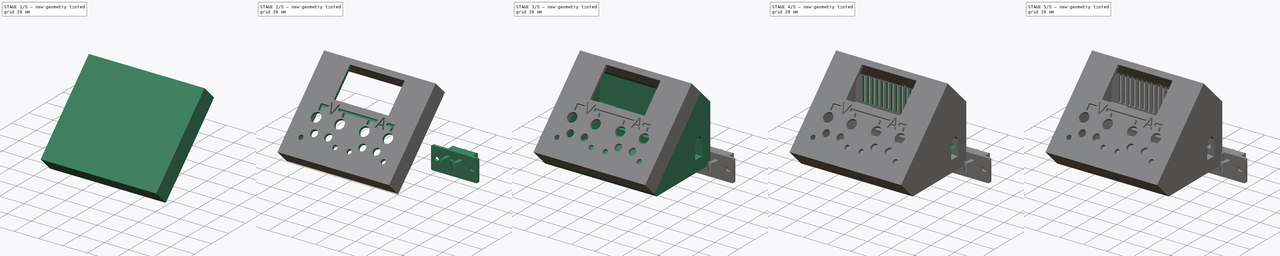
[diagram: build sequence overview — one tinted view per stage of 5, left to right]
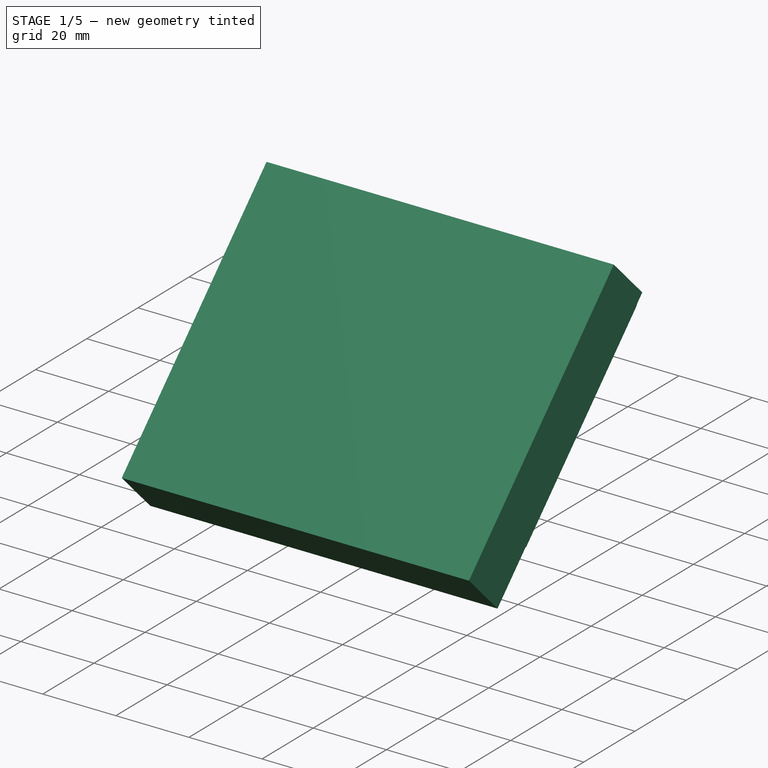
[diagram: stage 1 of 5 — iso view after this stage's code; geometry added in this stage tinted green]
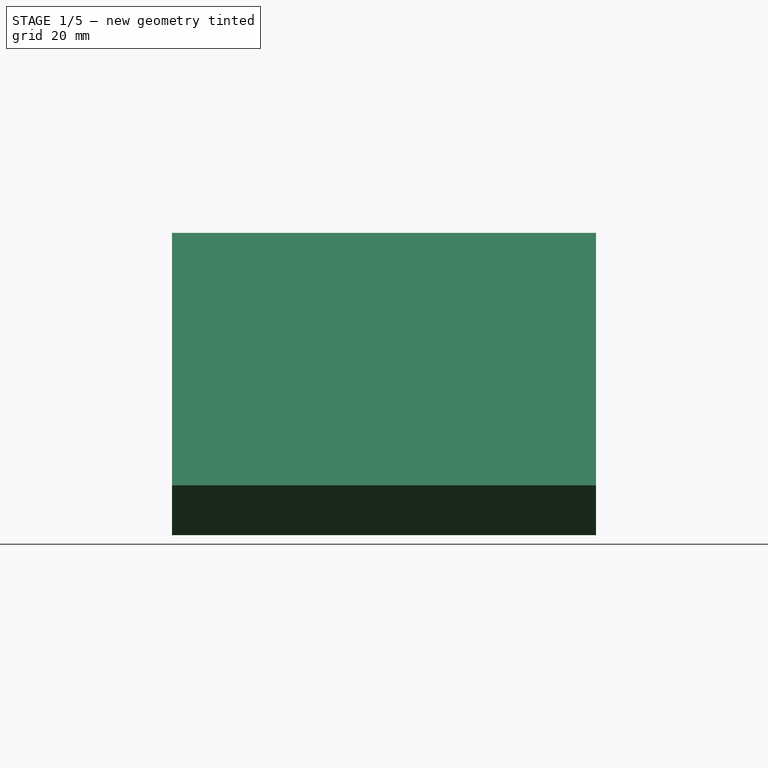
[diagram: stage 1 of 5 — front view after this stage's code; geometry added in this stage tinted green]
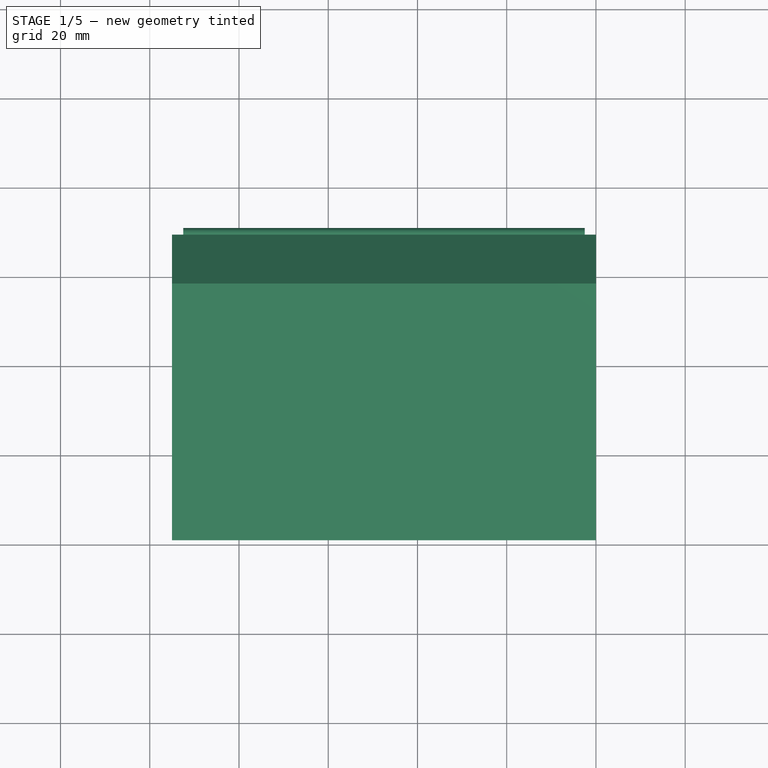
[diagram: stage 1 of 5 — top view after this stage's code; geometry added in this stage tinted green]
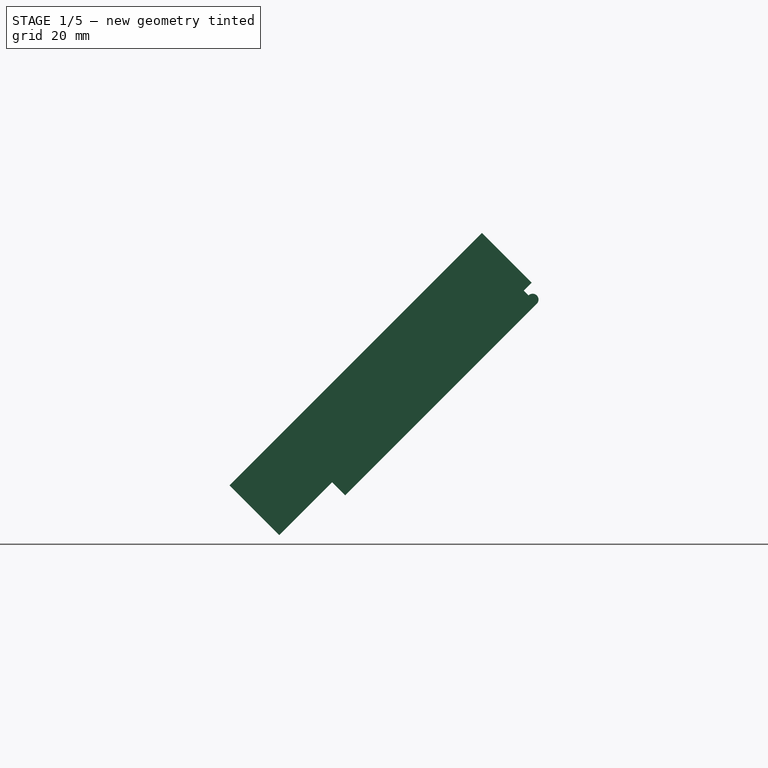
[diagram: stage 1 of 5 — right view after this stage's code; geometry added in this stage tinted green]
FCSTD DOCUMENT  (FreeCAD 0.19R24267 +148 (Git))
Label: voltAmperemetre_005_surBase35mm_008.1
License: All rights reserved
LicenseURL: http://en.wikipedia.org/wiki/All_rights_reserved
objects: Sketcher::SketchObject×35, App::Part×18, PartDesign::Pad×17, PartDesign::Pocket×17, Part::Feature×16, PartDesign::Plane×14, PartDesign::Body×11, Spreadsheet::Sheet×10, Part::FeaturePython×5, PartDesign::LinearPattern×4, PartDesign::Chamfer×4, PartDesign::FeatureBase×2, PartDesign::Thickness×2, Part::Part2DObjectPython×2, Part::Extrusion×2, Part::Cut×2, App::DocumentObjectGroup×1
note: 173 computed .brp shape members not serialized (recipe doc carries the construction recipe); baked Part::Feature solids carry a one-line shape summary decoded from their .brp

FEATURE [Sketcher::SketchObject] Sketch  label="profileDeBase"
  FullyConstrained = true
  MapMode = 5
  Placement = pos=(0,0,0) rot=(0.57735,0.57735,0.57735;2.0944rad)
  Support = -> [YZ_Plane001]
  expr: Constraints[13] = <<sp>>.angleFaceRetourHaut
  expr: Constraints[12] = <<sp>>.Face
  expr: Constraints[11] = <<sp>>.angleFacePetitRetour
  expr: Constraints[10] = <<sp>>.petitRetour
  expr: Constraints[9] = <<sp>>.anglePetitRetourBase
  expr: Constraints[8] = <<sp>>.Base
  sketch-geometry (5):
    g0: LineSegment StartX=0 StartY=0 StartZ=0 EndX=-65 EndY=0 EndZ=0
    g1: LineSegment StartX=-65 StartY=0 StartZ=0 EndX=-79.1421 EndY=14.1421 EndZ=0
    g2: LineSegment StartX=-79.1421 StartY=14.1421 StartZ=0 EndX=-22.5736 EndY=70.7107 EndZ=0
    g3: LineSegment StartX=-22.5736 StartY=70.7107 StartZ=0 EndX=0 EndY=48.1371 EndZ=0
    g4: LineSegment StartX=0 StartY=48.1371 StartZ=0 EndX=0 EndY=0 EndZ=0
  constraints (14):
    c: Coincident(g-1,g0)
    c: Horizontal(g0)
    c: Coincident(g0,g1)
    c: Coincident(g1,g2)
    c: Coincident(g2,g3)
    c: PointOnObject(g3,g-2)
    c: Coincident(g3,g4)
    c: Coincident(g4,g0)
    c: DistanceX(g0,g0) = 65
    c: Angle(g0,g1) = 2.35619
    c: Distance(g1) = 20
    c: Angle(g1,g2) = 1.5708
    c: Distance(g2) = 80
    c: Angle(g2,g3) = 1.5708
FEATURE [Spreadsheet::Sheet] Spreadsheet  label="sp"
  cells = A1=Base; B1(Base)=65; D1=insertDiamDeBase; E1=3; F1=(M3); A2=petitRetour; B2(petitRetour)=20; D2=insertDiamPercage; E2(insertDiamPercage)=4; A3=Face; B3(Face)=80; D3=insertProfondeurPercage; E3(insertProfondeurPercage)==xt60distanceAngleBord; F3=Calculé; A4=anglePetitRetourBase; B4(anglePetitRetourBase)=135; D4=insertDiamEvidementFer; E4=6; F4=Plus utilisé conservé pour mémoire; A5=angleFacePetitRetour; B5(angleFacePetitRetour)=90; D5=insertDistanceTrouBordMale; E5(insertDistanceTrouBordMale)==insertDiamPercage / 2 + epaisseurParois; F5=Calculé; A6=angleFaceRetourHaut; B6(angleFaceRetourHaut)=90; D6=insertDistanceTrouBordFem; E6(insertDistanceTrouBordFem)==largeurModuleBase - (insertDiamPercage / 2 + 10); F6=Calculé; A7=angleRetourHautVerticale; B7(angleRetourHautVerticale)=135; D7=insertHauteur; E7(insertHauteur)==xt60distanceAngleBord + xt60hauteur / 2; F7=Calculé; A8=largeurModuleBase; B8(largeurModuleBase)=95; D8=insertFAVDistBord; E8(insertFAVDistBord)==2 * insertFAVMargeDist + insertDiamPercage; A9=planTrancheur; B9(planTrancheur)=71; D9=insertFAVMargeDist; E9(insertFAVMargeDist)=2; F9=également epaisseur du renfort (min 1.6); A10=epaisseurParois; B10(epaisseurParois)=2.5; A11=porteBordALaParois; B11=3.5; D11=insertFavDistAuZeroDuPLan; E11(insertFavDistAuZeroDuPLan)==abs((planTrancheur - Base) * cos(anglePetitRetourBase)); F11=Calculé; A12=porteProfondeur1; B12=1.5; D12=insertFavProfondeur; E12(insertFavProfondeur)=8; F12=5.7+1 min; A13=porteLargeurRebord; B13=2; A14=xt60distanceAngleBord; B14(xt60distanceAngleBord)=10; D14=visM3DiamEncastrement; E14(visM3DiamEncastrement)=6; A15=xt60epRenfort; B15(xt60epRenfort)=2.5; D15=favEpBordure; E15(favEpBordure)=1.5; A16=xt60base; B16(xt60base)=8.300000000000001; D16=favBordureProf; E16(favBordureProf)=4.15; A17=xt60hauteur; B17(xt60hauteur)=13.25; D17=favBordureJeu; E17(favBordureJeu)=0.5; A18=xt60hauteurToit; B18(xt60hauteurToit)=2.5; D18=favDistBordPlan; E18(favDistBordPlan)==insertFavDistAuZeroDuPLan + epaisseurParois + insertFAVDistBord + insertFAVMargeDist; A19=xt60largeurFetiere; B19(xt60largeurFetiere)=3; A20=epaisseurFav; B20=15.5; A21=xt60longueurRenfortGrand; B21(xt60longueurRenfortGrand)=14; A22=xt60LongueurRenfortPetit; B22(xt60LongueurRenfortPetit)=6; D22=ventilLargeurFentes; E22(ventilLargeurFentes)=2; A23=hauteurDuDos; B23(hauteurDuDos)==(Face + petitRetour) * sqr2Sur2 - (Base + (petitRetour - Face) * sqr2Sur2); D23=ventilEcartfente; E23(ventilEcartfente)=2; A24=sqr2Sur2; B24(sqr2Sur2)==sqrt(2) / 2; D24=ventilDistBordFente; E24(ventilDistBordFente)=2; F24=Marge de sécurité; A25=distanceAuZeroPlanBorArriere; B25(distanceAuZeroPlanBorArriere)==sqrt(2 * pow(hauteurDuDos; 2)); D25=grandA; E25(grandA)==(largeurModuleBase - 2 * epaisseurParois) / 2; F25=Calculé; A26=hauteurPetitRetourSup; B26(hauteurPetitRetourSup)==Base + petitRetour * sqr2Sur2 - 80 * sqr2Sur2; D26=ventilLargeurRepet; E26(ventilLargeurRepet)==(ventilNbrFents - 1) * (ventilLargeurFentes + ventilEcartfente); F26=Calculé; A27=longeurPetitRetourSup; B27(longeurPetitRetourSup)==sqrt(2 * pow(hauteurPetitRetourSup; 2)); D27=ventilNbrFents; E27(ventilNbrFents)==floor(ventilLargeurRepetUtilisable / (ventilLargeurFentes + ventilEcartfente)); F27=Calculé; A28=longPetitRetSupSansFav; B28(longPetitRetSupSansFav)==longeurPetitRetourSup - (petitRetour - insertFavDistAuZeroDuPLan); D28=ventilLargeurRepetUtilisable; E28(ventilLargeurRepetUtilisable)==grandA - ventilDistBordFente - ventilEcartfente / 2; A29=planFaceAvant; B29(planFaceAvant)==Base + petitRetour * sqrt(2); A30=distZeroPlanFAV; B30(distZeroPlanFAV)==petitRetour; A31=bourletMaintientRayon; B31(bourletMaintientRayon)=1.5; A32=bourletDistAuBord; B32(bourletDistAuBord)=16; A33=bourletRayonJeu; B33(bourletRayonJeu)=0.2; A34=xtJeu; B34(xtJeu)=0.6
FEATURE [PartDesign::Pad] Pad
  AllowMultiFace = false
  Direction = (1,1,1)
  Length = 95
  Length2 = 100
  Placement = pos=(0,0,0) rot=(0.57735,0.57735,0.57735;2.0944rad)
  Profile = -> Sketch
  Reversed = true
  Type = 0
  expr: Length = <<sp>>.largeurModuleBase
FEATURE [PartDesign::Plane] DatumPlane
  AttachmentOffset = pos=(71,0,0) rot=(0,-1,0;0.785398rad)
  Length = 98.6412
  MapMode = 5
  Placement = pos=(-7.9e-15,8e-15,71) rot=(0.678598,0.678598,0.281085;3.68962rad)
  ResizeMode = 0
  Support = -> [Pad]
  Width = 63.0813
FEATURE [PartDesign::Body] Body  label="Base"
  Group = -> [Sketch,Pad,DatumPlane]
  Origin = -> Origin001
  Tip = -> Pad
FEATURE [App::Part] Part
  Group = -> [Body]
  Origin = -> Origin
FEATURE [Part::FeaturePython] Slice  # WARN: FeaturePython — macro-defined, semantics opaque (R4)
  Base = -> Pad
  Mode = 1
  Tolerance = 0
  Tools = -> [DatumPlane]
FEATURE [Part::FeaturePython] Slice_child1  label="Slice.1"  # WARN: FeaturePython — macro-defined, semantics opaque (R4)
  Base = -> Slice
  FilterType = 1
  Invert = false
  OverrideMaxVal = 0
  WindowFrom = 80
  WindowTo = 100
  items = 1
FEATURE [PartDesign::FeatureBase] Clone001
  BaseFeature = -> Slice_child1
FEATURE [PartDesign::Thickness] Thickness001
  Base = -> Clone001 [Face5]
  BaseFeature = -> Clone001
  Intersection = false
  Join = 0
  Mode = 0
  Reversed = true
  SupportTransform = false
  Value = 2.5
  expr: Value = <<sp>>.epaisseurParois
FEATURE [PartDesign::Plane] DatumPlane007  label="planTrancheurBis"
  AttachmentOffset = pos=(0,0,71) rot=(-1,0,0;0.785398rad)
  Length = 65.4269
  MapMode = 5
  Placement = pos=(0,-71,-1.58e-14) rot=(1,0,0;0.785398rad)
  ResizeMode = 0
  Support = -> [XZ_Plane003]
  Width = 134.422
  expr: .AttachmentOffset.Base.z = <<sp>>.planTrancheur
FEATURE [Sketcher::SketchObject] Sketch016  label="sk_insertFavDroit"
  FullyConstrained = true
  MapMode = 5
  Placement = pos=(0,-71,-2.13e-14) rot=(1,0,0;0.785398rad)
  Support = -> [DatumPlane007]
  expr: Constraints[11] = <<sp>>.insertFAVDistBord
  expr: Constraints[14] = <<sp>>.insertFAVDistBord / 2
  expr: Constraints[9] = <<sp>>.insertFAVDistBord
  expr: Constraints[8] = <<sp>>.insertFavDistAuZeroDuPLan + <<sp>>.epaisseurParois
  expr: Constraints[7] = <<sp>>.epaisseurParois
  sketch-geometry (5):
    g0: LineSegment StartX=-6.5 StartY=14.7426 StartZ=0 EndX=-2.5 EndY=14.7426 EndZ=0
    g1: LineSegment StartX=-2.5 StartY=14.7426 StartZ=0 EndX=-2.5 EndY=6.74264 EndZ=0
    g2: LineSegment StartX=-2.5 StartY=6.74264 StartZ=0 EndX=-10.5 EndY=6.74264 EndZ=0
    g3: LineSegment StartX=-10.5 StartY=6.74264 StartZ=0 EndX=-10.5 EndY=10.7426 EndZ=0
    g4: ArcOfCircle CenterX=-6.5 CenterY=10.7426 CenterZ=0 NormalX=0 NormalY=0 NormalZ=1 AngleXU=0 Radius=4 StartAngle=1.5708 EndAngle=3.14159
  constraints (15):
    c: Horizontal(g0)
    c: Coincident(g0,g1)
    c: Vertical(g1)
    c: Coincident(g1,g2)
    c: Horizontal(g2)
    c: Coincident(g2,g3)
    c: Vertical(g3)
    c: DistanceX(g1,g-1) = 2.5
    c: DistanceY(g-1,g1) = 6.74264
    c: DistanceY(g1,g1) = 8
    c: Equal(g3,g0)
    c: DistanceX(g2,g2) = 8
    c: Coincident(g4,g0)
    c: Tangent(g4,g3) = 1.5708
    c: DistanceX(g4,g1) = 4
FEATURE [PartDesign::Pad] Pad005  label="padInsertFavDroit"
  AllowMultiFace = false
  BaseFeature = -> Thickness001
  Direction = (1,1,1)
  Length = 10
  Length2 = 100
  Profile = -> Sketch016
  Type = 2
FEATURE [Sketcher::SketchObject] Sketch017  label="sp_padInserFavGauch"
  FullyConstrained = true
  MapMode = 5
  Placement = pos=(0,-71,-2.13e-14) rot=(1,0,0;0.785398rad)
  Support = -> [DatumPlane007]
  expr: Constraints[16] = <<sp>>.epaisseurParois
  expr: Constraints[15] = <<sp>>.epaisseurParois
  expr: Constraints[14] = <<sp>>.insertFavDistAuZeroDuPLan
  expr: Constraints[13] = <<sp>>.largeurModuleBase
  expr: Constraints[10] = <<sp>>.insertFAVDistBord
  expr: Constraints[12] = <<sp>>.insertFAVDistBord / 2
  sketch-geometry (6):
    g0: LineSegment StartX=-88.5 StartY=14.7426 StartZ=0 EndX=-92.5 EndY=14.7426 EndZ=0
    g1: LineSegment StartX=-92.5 StartY=14.7426 StartZ=0 EndX=-92.5 EndY=6.74264 EndZ=0
    g2: LineSegment StartX=-92.5 StartY=6.74264 StartZ=0 EndX=-84.5 EndY=6.74264 EndZ=0
    g3: LineSegment StartX=-84.5 StartY=6.74264 StartZ=0 EndX=-84.5 EndY=10.7426 EndZ=0
    g4: ArcOfCircle CenterX=-88.5 CenterY=10.7426 CenterZ=0 NormalX=0 NormalY=0 NormalZ=1 AngleXU=0 Radius=4 StartAngle=-9e-16 EndAngle=1.5708
    g5: GeomPoint X=-95 Y=4.24264 Z=0
  constraints (17):
    c: Horizontal(g0)
    c: Coincident(g0,g1)
    c: Vertical(g1)
    c: Coincident(g1,g2)
    c: Horizontal(g2)
    c: Coincident(g2,g3)
    c: Vertical(g3)
    c: Equal(g3,g0)
    c: Equal(g2,g1)
    c: Coincident(g0,g4)
    c: DistanceX(g2,g2) = 8
    c: Tangent(g4,g3) = -1.5708
    c: DistanceX(g0,g0) = 4
    c: DistanceX(g5,g-1) = 95
    c: DistanceY(g-1,g5) = 4.24264
    c: DistanceY(g5,g1) = 2.5
    c: DistanceX(g5,g1) = 2.5
FEATURE [PartDesign::Pad] Pad006  label="padInsertFavGauch"
  AllowMultiFace = false
  BaseFeature = -> Pad005
  Direction = (1,1,1)
  Length = 10
  Length2 = 100
  Profile = -> Sketch017
  Type = 2
FEATURE [Sketcher::SketchObject] Sketch018  label="skPercageInsertFavDroit"
  FullyConstrained = true
  MapMode = 5
  Placement = pos=(0,-71,-2.13e-14) rot=(1,0,0;0.785398rad)
  Support = -> [DatumPlane007]
  expr: Constraints[7] = <<sp>>.largeurModuleBase - 2 * <<sp>>.epaisseurParois - <<sp>>.insertFAVDistBord
  expr: Constraints[2] = <<sp>>.epaisseurParois + <<sp>>.insertFAVDistBord / 2
  expr: Constraints[1] = <<sp>>.insertFavDistAuZeroDuPLan + <<sp>>.epaisseurParois + <<sp>>.insertFAVDistBord / 2
  expr: Constraints[0] = <<sp>>.insertDiamPercage
  sketch-geometry (3):
    g0: Circle CenterX=-6.5 CenterY=10.7426 CenterZ=0 NormalX=0 NormalY=0 NormalZ=1 AngleXU=0 Radius=2
    g1: Circle CenterX=-88.5 CenterY=10.7426 CenterZ=0 NormalX=0 NormalY=0 NormalZ=1 AngleXU=0 Radius=2
    g2: LineSegment StartX=-88.5 StartY=10.7426 StartZ=0 EndX=-6.5 EndY=10.7426 EndZ=0
  constraints (8):
    c: Diameter(g0) = 4
    c: DistanceY(g-1,g0) = 10.7426
    c: DistanceX(g0,g-1) = 6.5
    c: Equal(g0,g1)
    c: Coincident(g2,g1)
    c: Coincident(g2,g0)
    c: Horizontal(g2)
    c: DistanceX(g2,g2) = 82
FEATURE [PartDesign::Pocket] Pocket010  label="trouInsertFavDroit"
  AllowMultiFace = false
  BaseFeature = -> Pad006
  Length = 8
  Length2 = 100
  Profile = -> Sketch018
  Reversed = true
  Type = 0
  expr: Length = <<sp>>.insertFavProfondeur
FEATURE [PartDesign::Body] Body001  label="base"
  BaseFeature = -> Slice_child0
  Group = -> [Clone,Thickness,DatumPlane001,Sketch002,Pad001,Sketch003,Pocket,DatumPlane002,Sketch004,Pocket001,Sketch005,Pocket002,Sketch006,Pocket003,DatumPlane003,DatumPlane004,Sketch008,Pad003,Sketch009,Pad004,Sketch010,Pocket004,Sketch011,Pocket005,DatumPlane005,Sketch012,Pocket006,Sketch014,Pocket008,LinearPattern,LinearPattern001,DatumPlane006,Sketch015,Pocket009,LinearPattern002,LinearPattern003,+3 more]
  Origin = -> Origin002
  Tip = -> Pocket015
FEATURE [PartDesign::Plane] DatumPlane011  label="planFaceAvant"
  AttachmentOffset = pos=(0,0,93.2843) rot=(-1,0,0;0.785398rad)
  Length = 65.4269
  MapMode = 5
  Placement = pos=(0,-93.2843,-2.07e-14) rot=(1,0,0;0.785398rad)
  ResizeMode = 0
  Support = -> [XZ_Plane003]
  Width = 134.422
  expr: .AttachmentOffset.Base.z = <<sp>>.planFaceAvant
FEATURE [Sketcher::SketchObject] Sketch030  label="sk_rebordFav"
  FullyConstrained = true
  MapMode = 5
  Placement = pos=(0,-71,-2.13e-14) rot=(1,0,0;0.785398rad)
  Support = -> [DatumPlane007]
  expr: Constraints[23] = <<sp>>.favEpBordure
  expr: Constraints[19] = <<sp>>.epaisseurParois
  expr: Constraints[22] = <<sp>>.largeurModuleBase - 2 * <<sp>>.epaisseurParois
  expr: Constraints[25] = <<sp>>.favEpBordure
  expr: Constraints[21] = <<sp>>.favDistBordPlan
  expr: Constraints[24] = <<sp>>.Face - <<sp>>.epaisseurParois
  expr: Constraints[20] = <<sp>>.favEpBordure
  expr: Constraints[0] = <<sp>>.insertFavDistAuZeroDuPLan
  sketch-geometry (9):
    g0: GeomPoint X=0 Y=4.24264 Z=0
    g1: LineSegment StartX=-92.5 StartY=20.9853 StartZ=0 EndX=-92.5 EndY=81.7426 EndZ=0
    g2: LineSegment StartX=-92.5 StartY=81.7426 StartZ=0 EndX=-2.5 EndY=81.7426 EndZ=0
    g3: LineSegment StartX=-2.5 StartY=81.7426 StartZ=0 EndX=-2.5 EndY=20.9853 EndZ=0
    g4: LineSegment StartX=-2.5 StartY=20.9853 StartZ=0 EndX=-4 EndY=20.9853 EndZ=0
    g5: LineSegment StartX=-4 StartY=20.9853 StartZ=0 EndX=-4 EndY=80.2426 EndZ=0
    g6: LineSegment StartX=-4 StartY=80.2426 StartZ=0 EndX=-91 EndY=80.2426 EndZ=0
    g7: LineSegment StartX=-91 StartY=80.2426 StartZ=0 EndX=-91 EndY=20.9853 EndZ=0
    g8: LineSegment StartX=-91 StartY=20.9853 StartZ=0 EndX=-92.5 EndY=20.9853 EndZ=0
  constraints (26):
    c: DistanceY(g-1,g0) = 4.24264
    c: Vertical(g0,g-1)
    c: Vertical(g1)
    c: Coincident(g1,g2)
    c: Horizontal(g2)
    c: Coincident(g2,g3)
    c: Vertical(g3)
    c: Coincident(g3,g4)
    c: Horizontal(g4)
    c: Coincident(g4,g5)
    c: Vertical(g5)
    c: Coincident(g5,g6)
    c: Horizontal(g6)
    c: Coincident(g6,g7)
    c: Vertical(g7)
    c: Coincident(g7,g8)
    c: Coincident(g8,g1)
    c: Horizontal(g8)
    c: Horizontal(g7,g4)
    c: DistanceX(g3,g0) = 2.5
    c: DistanceX(g4,g4) = 1.5
    c: DistanceY(g0,g3) = 16.7426
    c: DistanceX(g1,g3) = 90
    c: DistanceY(g5,g2) = 1.5
    c: DistanceY(g0,g2) = 77.5
    c: DistanceX(g1,g7) = 1.5
FEATURE [PartDesign::Pad] Pad014  label="favRebordSupport"
  AllowMultiFace = false
  BaseFeature = -> Pocket010
  Direction = (1,1,1)
  Length = 10
  Length2 = 100
  Profile = -> Sketch030
  Type = 3
  UpToFace = -> Pocket010 [Face13]
FEATURE [PartDesign::Pad] Pad015  label="favRebord"
  AllowMultiFace = false
  BaseFeature = -> Pad014
  Direction = (1,1,1)
  Length = 4.15
  Length2 = 100
  Profile = -> Sketch030
  Reversed = true
  Type = 0
  expr: Length = <<sp>>.favBordureProf
FEATURE [Sketcher::SketchObject] Sketch031  label="sk_bourlet"
  ExternalGeometry = -> [Pad015]
  FullyConstrained = true
  MapMode = 5
  Placement = pos=(-2.5,0,0) rot=(0.57735,0.57735,0.57735;2.0944rad)
  Support = -> [Pad015]
  expr: Constraints[3] = <<sp>>.bourletMaintientRayon - <<sp>>.bourletRayonJeu
  sketch-geometry (2):
    g0: ArcOfCircle CenterX=-11.184 CenterY=55.7855 CenterZ=0 NormalX=0 NormalY=0 NormalZ=1 AngleXU=0 Radius=1.3 StartAngle=5.49779 EndAngle=8.63938
    g1: LineSegment StartX=-12.1032 StartY=56.7048 StartZ=0 EndX=-10.2647 EndY=54.8663 EndZ=0
  constraints (6):
    c: Coincident(g0,g-3)
    c: PointOnObject(g0,g-3)
    c: PointOnObject(g0,g-3)
    c: Radius(g0) = 1.3
    c: Coincident(g1,g0)
    c: Coincident(g1,g0)
FEATURE [PartDesign::Pad] Pad016  label="bourlet"
  AllowMultiFace = false
  BaseFeature = -> Pad015
  Direction = (1,1,1)
  Length = 10
  Length2 = 100
  Profile = -> Sketch031
  Reversed = true
  Type = 3
  UpToFace = -> Pad015 [Face11]
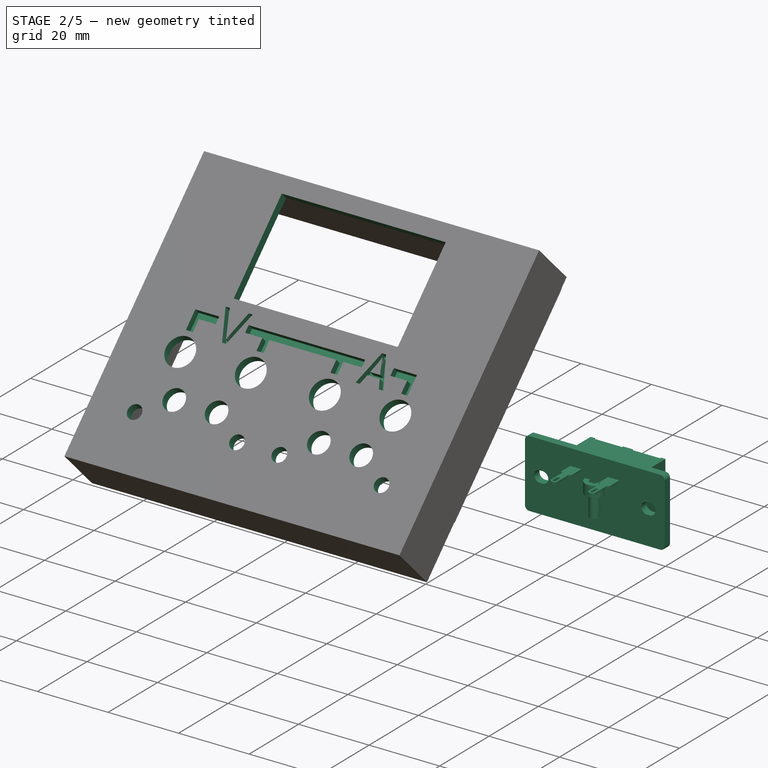
[diagram: stage 2 of 5 — iso view after this stage's code; geometry added in this stage tinted green]
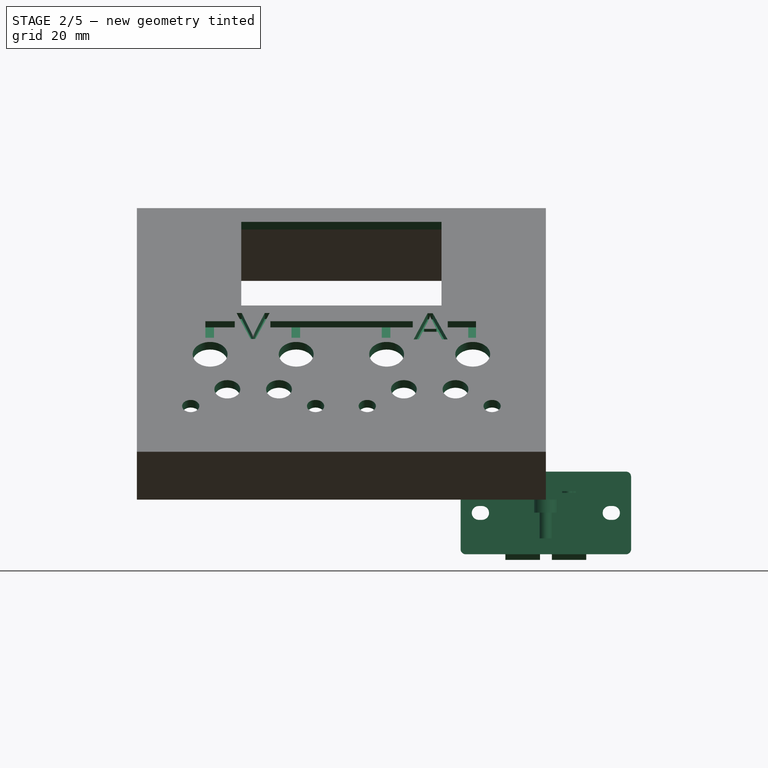
[diagram: stage 2 of 5 — front view after this stage's code; geometry added in this stage tinted green]
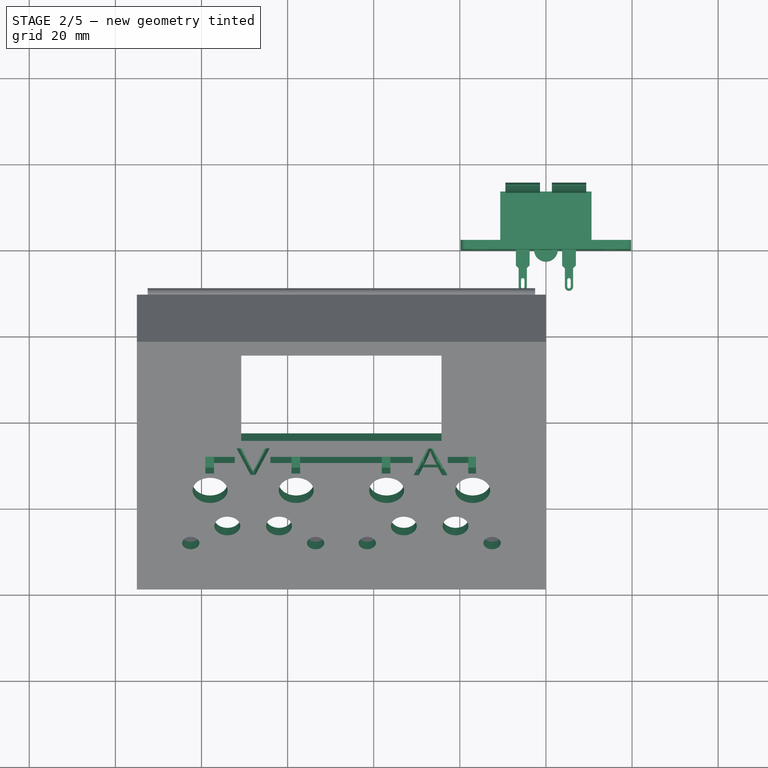
[diagram: stage 2 of 5 — top view after this stage's code; geometry added in this stage tinted green]
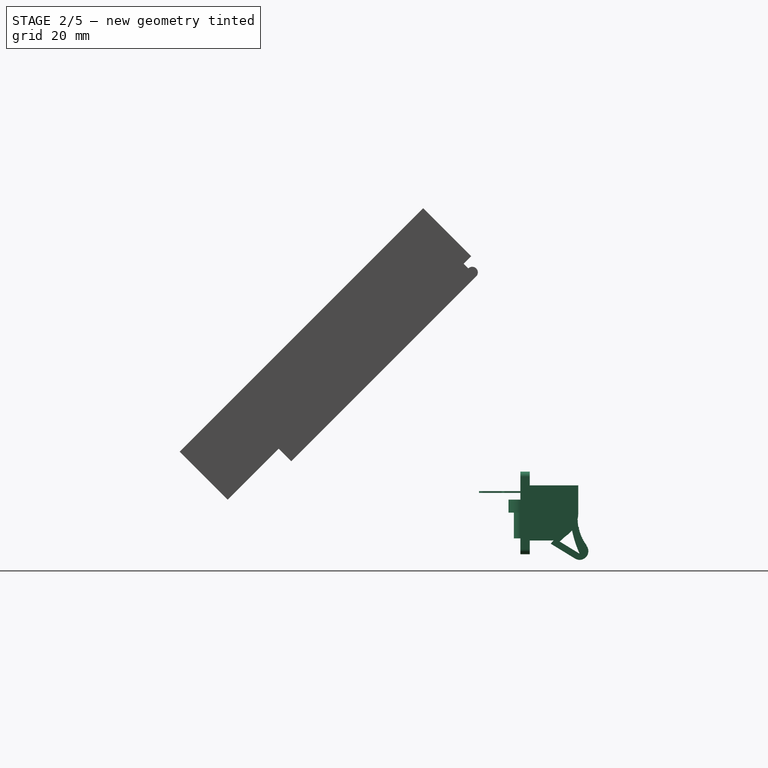
[diagram: stage 2 of 5 — right view after this stage's code; geometry added in this stage tinted green]
FEATURE [PartDesign::Body] Body009  label="visTHCM3x6_FAV001"
  Group = -> [Sketch034,Pad019,Sketch001,Pad020,DatumPlane014,Sketch035,Pocket016]
  Origin = -> Origin019
  Placement = pos=(-6.5,-61.8718,6.01041) rot=(1,0,0;3.92699rad)
  Tip = -> Pocket016
FEATURE [Sketcher::SketchObject] Sketch036
  FullyConstrained = false
  MapMode = 5
  Support = -> [XY_Plane016]
  sketch-geometry (1):
    g0: Circle CenterX=0 CenterY=0 CenterZ=0 NormalX=0 NormalY=0 NormalZ=1 AngleXU=0 Radius=2.75
  constraints (2):
    c: Coincident(g0,g-1)
    c: Diameter(g0) = 5.5
FEATURE [PartDesign::Pad] Pad021  label="tete001"
  AllowMultiFace = false
  Direction = (1,1,1)
  Length = 3
  Length2 = 100
  Profile = -> Sketch036
  Type = 0
FEATURE [Sketcher::SketchObject] Sketch037
  FullyConstrained = false
  MapMode = 5
  Placement = pos=(0,0,0) rot=(1,0,0;3.14159rad)
  Support = -> [Pad021]
  sketch-geometry (1):
    g0: Circle CenterX=0 CenterY=0 CenterZ=0 NormalX=0 NormalY=0 NormalZ=1 AngleXU=0 Radius=1.5
  constraints (2):
    c: Coincident(g0,g-1)
    c: Diameter(g0) = 3
FEATURE [PartDesign::Pad] Pad022  label="corps001"
  AllowMultiFace = false
  BaseFeature = -> Pad021
  Direction = (1,1,1)
  Length = 6
  Length2 = 100
  Profile = -> Sketch037
  Type = 0
FEATURE [PartDesign::Plane] DatumPlane015
  AttachmentOffset = pos=(0,0,3) rot=(0,0,1;0rad)
  Length = 60
  MapMode = 5
  Placement = pos=(0,0,3) rot=(0,0,1;0rad)
  ResizeMode = 0
  Support = -> [XY_Plane016]
  Width = 60
FEATURE [Sketcher::SketchObject] Sketch038
  FullyConstrained = false
  MapMode = 5
  Placement = pos=(0,0,3) rot=(0,0,1;0rad)
  Support = -> [DatumPlane015]
  sketch-geometry (7):
    g0: LineSegment StartX=0.721688 StartY=-1.25 StartZ=0 EndX=1.44338 EndY=1.0119e-12 EndZ=0
    g1: LineSegment StartX=1.44338 StartY=1.0119e-12 StartZ=0 EndX=0.721688 EndY=1.25 EndZ=0
    g2: LineSegment StartX=0.721688 StartY=1.25 StartZ=0 EndX=-0.721688 EndY=1.25 EndZ=0
    g3: LineSegment StartX=-0.721688 StartY=1.25 StartZ=0 EndX=-1.44338 EndY=8.689e-13 EndZ=0
    g4: LineSegment StartX=-1.44338 StartY=8.689e-13 StartZ=0 EndX=-0.721688 EndY=-1.25 EndZ=0
    g5: LineSegment StartX=-0.721688 StartY=-1.25 StartZ=0 EndX=0.721688 EndY=-1.25 EndZ=0
    g6: Circle CenterX=0 CenterY=0 CenterZ=0 NormalX=0 NormalY=0 NormalZ=1 AngleXU=0 Radius=1.44338
  constraints (16):
    c: Coincident(g0,g1)
    c: Coincident(g1,g2)
    c: Coincident(g2,g3)
    c: Coincident(g3,g4)
    c: Coincident(g4,g5)
    c: Coincident(g5,g0)
    c: Equal(g0, g1-g5) x5
    c: PointOnObject(g0,g6)
    c: PointOnObject(g1,g6)
    c: PointOnObject(g2,g6)
    c: PointOnObject(g3,g6)
    c: PointOnObject(g4,g6)
    c: PointOnObject(g5,g6)
    c: Coincident(g6,g-1)
    c: Horizontal(g2)
    c: DistanceY(g0,g1) = 2.5
FEATURE [PartDesign::Pocket] Pocket017  label="emprunte001"
  AllowMultiFace = false
  BaseFeature = -> Pad022
  Length = 4
  Length2 = 100
  Profile = -> Sketch038
  Type = 0
FEATURE [PartDesign::Body] Body010  label="visTHCM3x6_FAV002"
  Group = -> [Sketch036,Pad021,Sketch037,Pad022,DatumPlane015,Sketch038,Pocket017]
  Origin = -> Origin020
  Placement = pos=(-88.5,-61.8718,6.01041) rot=(1,0,0;3.92699rad)
  Tip = -> Pocket017
FEATURE [Part::Feature] Part__Feature007  label="4mm Banana Socket"
  Placement = pos=(3e-15,0,-29.4) rot=(0,-1,0;1.5708rad)
  shape: bbox 12.26 x 13.6 x 22.94 mm, 187 faces, 5 solids (baked)
FEATURE [Spreadsheet::Sheet] Spreadsheet002  label="ban"
  cells = A2=diamPercage; B2(diamPercage)=8.1; C2=+jeu
FEATURE [App::Part] Part012  label="embaseBanane4mm_001"
  Group = -> [Part__Feature007,Spreadsheet002]
  Origin = -> Origin025
  Placement = pos=(-17,-53.033,33.234) rot=(1,0,0;0.785398rad)
FEATURE [Sketcher::SketchObject] Sketch039  label="skTrouFav"
  FullyConstrained = true
  MapMode = 5
  Placement = pos=(0,-93.2843,-2.84e-14) rot=(1,0,0;0.785398rad)
  Support = -> [DatumPlane011]
  expr: Constraints[8] = <<sp>>.distZeroPlanFAV
  expr: Constraints[52] = <<favp>>.bornierEspace
  expr: Constraints[68] = <<favp>>.douileEcartement
  expr: Constraints[48] = <<bornSp>>.bornierVisTrouDiam
  expr: Constraints[10] = <<favp>>.favCentre
  expr: Constraints[12] = <<spva>>.trouLong
  expr: Constraints[13] = <<spva>>.trouLarg
  expr: Constraints[71] = <<favp>>.bornierEspace / 2 + <<bornSp>>.bornierVisEntraxe / 2 - <<favp>>.douileEcartement / 2
  expr: Constraints[15] = <<spva>>.trouLong / 2
  expr: Constraints[69] = <<favp>>.bornierEspace / 2 + <<bornSp>>.bornierVisEntraxe / 2 - <<favp>>.douileEcartement / 2
  expr: Constraints[49] = <<bornSp>>.bornierDistAxeVisAxeCosSurY
  expr: Constraints[43] = <<favp>>.bornierPosY
  expr: Constraints[50] = <<bornSp>>.bornierVisEntraxe
  expr: Constraints[47] = <<bornSp>>.bornierCosseTrousDiam
  expr: Constraints[51] = <<bornSp>>.bornirCosseEntreaxe
  expr: Constraints[53] = <<favp>>.bornierEspace / 2
  expr: Constraints[67] = <<ban>>.diamPercage
  expr: Constraints[14] = <<favp>>.VAposY
  expr: Constraints[70] = <<favp>>.douillePosY
  sketch-geometry (28):
    g0: LineSegment StartX=-24.25 StartY=68 StartZ=0 EndX=-70.75 EndY=68 EndZ=0
    g1: LineSegment StartX=-70.75 StartY=68 StartZ=0 EndX=-70.75 EndY=95.5 EndZ=0
    g2: LineSegment StartX=-70.75 StartY=95.5 StartZ=0 EndX=-24.25 EndY=95.5 EndZ=0
    g3: LineSegment StartX=-24.25 StartY=95.5 StartZ=0 EndX=-24.25 EndY=68 EndZ=0
    g4: GeomPoint X=0 Y=20 Z=0
    g5: GeomPoint X=-47.5 Y=0 Z=0
    g6: Circle CenterX=-41.5 CenterY=35 CenterZ=0 NormalX=0 NormalY=0 NormalZ=1 AngleXU=0 Radius=2
    g7: Circle CenterX=-12.5 CenterY=35 CenterZ=0 NormalX=0 NormalY=0 NormalZ=1 AngleXU=0 Radius=2
    g8: Circle CenterX=-33 CenterY=40.5 CenterZ=0 NormalX=0 NormalY=0 NormalZ=1 AngleXU=0 Radius=3
    g9: Circle CenterX=-21 CenterY=40.5 CenterZ=0 NormalX=0 NormalY=0 NormalZ=1 AngleXU=0 Radius=3
    g10: Circle CenterX=-62 CenterY=40.5 CenterZ=0 NormalX=0 NormalY=0 NormalZ=1 AngleXU=0 Radius=3
    g11: Circle CenterX=-74 CenterY=40.5 CenterZ=0 NormalX=0 NormalY=0 NormalZ=1 AngleXU=0 Radius=3
    g12: Circle CenterX=-82.5 CenterY=35 CenterZ=0 NormalX=0 NormalY=0 NormalZ=1 AngleXU=0 Radius=2
    g13: Circle CenterX=-53.5 CenterY=35 CenterZ=0 NormalX=0 NormalY=0 NormalZ=1 AngleXU=0 Radius=2
    g14: LineSegment StartX=-74 StartY=40.5 StartZ=0 EndX=-62 EndY=40.5 EndZ=0
    g15: LineSegment StartX=-82.5 StartY=35 StartZ=0 EndX=-53.5 EndY=35 EndZ=0
    g16: LineSegment StartX=-41.5 StartY=35 StartZ=0 EndX=-12.5 EndY=35 EndZ=0
    g17: LineSegment StartX=-33 StartY=40.5 StartZ=0 EndX=-21 EndY=40.5 EndZ=0
    g18: LineSegment StartX=-27 StartY=40.5 StartZ=0 EndX=-27 EndY=35 EndZ=0
    g19: LineSegment StartX=-68 StartY=35 StartZ=0 EndX=-68 EndY=40.5 EndZ=0
    g20: LineSegment StartX=-53.5 StartY=35 StartZ=0 EndX=-41.5 EndY=35 EndZ=0
    g21: Circle CenterX=-78 CenterY=52 CenterZ=0 NormalX=0 NormalY=0 NormalZ=1 AngleXU=0 Radius=4.05
    g22: Circle CenterX=-58 CenterY=52 CenterZ=0 NormalX=0 NormalY=0 NormalZ=1 AngleXU=0 Radius=4.05
    g23: Circle CenterX=-37 CenterY=52 CenterZ=0 NormalX=0 NormalY=0 NormalZ=1 AngleXU=0 Radius=4.05
    g24: Circle CenterX=-17 CenterY=52 CenterZ=0 NormalX=0 NormalY=0 NormalZ=1 AngleXU=0 Radius=4.05
    g25: LineSegment StartX=-78 StartY=52 StartZ=0 EndX=-58 EndY=52 EndZ=0
    g26: LineSegment StartX=-37 StartY=52 StartZ=0 EndX=-17 EndY=52 EndZ=0
    g27: LineSegment StartX=-58 StartY=52 StartZ=0 EndX=-37 EndY=52 EndZ=0
  constraints (72):
    c: Coincident(g0,g1)
    c: Coincident(g1,g2)
    c: Coincident(g2,g3)
    c: Coincident(g3,g0)
    c: Horizontal(g0)
    c: Horizontal(g2)
    c: Vertical(g1)
    c: Vertical(g3)
    c: DistanceY(g-1,g4) = 20
    c: Vertical(g4,g-1)
    c: DistanceX(g5,g-1) = 47.5
    c: Horizontal(g5,g-1)
    c: DistanceX(g2,g2) = 46.5
    c: DistanceY(g3,g3) = 27.5
    c: DistanceY(g4,g0) = 48
    c: DistanceX(g5,g0) = 23.25
    c: Equal(g11,g10)
    c: Equal(g10,g8)
    c: Equal(g8,g9)
    c: Equal(g12,g13)
    c: Equal(g13,g6)
    c: Equal(g6,g7)
    c: Coincident(g14,g11)
    c: Coincident(g14,g10)
    c: Horizontal(g14)
    c: Coincident(g15,g12)
    c: Coincident(g15,g13)
    c: Horizontal(g15)
    c: Coincident(g16,g6)
    c: Coincident(g16,g7)
    c: Horizontal(g16)
    c: Coincident(g17,g8)
    c: Coincident(g17,g9)
    c: Horizontal(g17)
    c: Vertical(g18)
    c: Vertical(g19)
    c: Symmetric(g12,g13,g19)
    c: Symmetric(g11,g10,g19)
    c: Symmetric(g8,g9,g18)
    c: Symmetric(g6,g7,g18)
    c: Equal(g18,g19)
    c: Equal(g16,g15)
    c: Equal(g14,g17)
    c: DistanceY(g4,g7) = 15
    c: Coincident(g20,g13)
    c: Coincident(g20,g6)
    c: Horizontal(g20)
    c: Diameter(g9) = 6
    c: Diameter(g7) = 4
    c: DistanceY(g18,g18) = 5.5
    c: DistanceX(g16,g16) = 29
    c: DistanceX(g17,g17) = 12
    c: DistanceX(g20,g20) = 12
    c: DistanceX(g5,g6) = 6
    c: Coincident(g25,g21)
    c: Coincident(g25,g22)
    c: Horizontal(g25)
    c: Coincident(g26,g23)
    c: Coincident(g26,g24)
    c: Horizontal(g26)
    c: Coincident(g27,g22)
    c: Coincident(g27,g23)
    c: Horizontal(g27)
    c: Equal(g25,g26)
    c: Equal(g24,g23)
    c: Equal(g23,g22)
    c: Equal(g22,g21)
    c: Diameter(g24) = 8.1
    c: DistanceX(g26,g26) = 20
    c: DistanceX(g5,g23) = 10.5
    c: DistanceY(g4,g24) = 32
    c: DistanceX(g22,g5) = 10.5
FEATURE [Spreadsheet::Sheet] Spreadsheet003  label="ban001"
  cells = A2=diamPercage; B2(diamPercage)=6; C2=+jeu
FEATURE [Part::Feature] Part__Feature009  label="4mm Banana Socket001"
  Placement = pos=(3e-15,0,-29.4) rot=(0,-1,0;1.5708rad)
  shape: bbox 12.26 x 13.6 x 22.94 mm, 187 faces, 5 solids (baked)
FEATURE [App::Part] Part014  label="embaseBanane4mm_002"
  Group = -> [Part__Feature009,Spreadsheet003]
  Origin = -> Origin028
  Placement = pos=(-37,-53.033,33.234) rot=(1,0,0;0.785398rad)
FEATURE [Spreadsheet::Sheet] Spreadsheet004  label="ban002"
  cells = A2=diamPercage; B2(diamPercage)=6; C2=+jeu
FEATURE [Part::Feature] Part__Feature010  label="4mm Banana Socket002"
  Placement = pos=(3e-15,0,-29.4) rot=(0,-1,0;1.5708rad)
  shape: bbox 12.26 x 13.6 x 22.94 mm, 187 faces, 5 solids (baked)
FEATURE [App::Part] Part015  label="embaseBanane4mm_003"
  Group = -> [Part__Feature010,Spreadsheet004]
  Origin = -> Origin029
  Placement = pos=(-58,-53.033,33.234) rot=(1,0,0;0.785398rad)
FEATURE [Spreadsheet::Sheet] Spreadsheet005  label="ban003"
  cells = A2=diamPercage; B2(diamPercage)=6; C2=+jeu
FEATURE [Part::Feature] Part__Feature011  label="4mm Banana Socket003"
  Placement = pos=(3e-15,0,-29.4) rot=(0,-1,0;1.5708rad)
  shape: bbox 12.26 x 13.6 x 22.94 mm, 187 faces, 5 solids (baked)
FEATURE [App::Part] Part016  label="embaseBanane4mm_004"
  Group = -> [Part__Feature011,Spreadsheet005]
  Origin = -> Origin030
  Placement = pos=(-78,-53.033,33.234) rot=(1,0,0;0.785398rad)
FEATURE [Part::Feature] Part__Feature012  label="Borne de haut parleur femelle 2 voies"
  shape: bbox 49.5 x 31.73 x 25.62 mm, 146 faces (baked)
FEATURE [Part::FeaturePython] Scale  # Draft clone (typed FeaturePython)
  Fuse = false
  Objects = -> [Part__Feature012]
  Placement = pos=(-0.0194489,-1.2417e-07,-0.083234) rot=(0,0,1;0rad)
  Scale = (0.8,0.8,0.8)
FEATURE [Spreadsheet::Sheet] Spreadsheet006  label="bornSp"
  cells = A2=bornierVisEntraxe; B2(bornierVisEntraxe)=29; A3=bornierVisTrouDiam; B3(bornierVisTrouDiam)=4; A4=bornirCosseEntreaxe; B4(bornirCosseEntreaxe)=12; A5=bornierCosseTrousDiam; B5(bornierCosseTrousDiam)=6; A6=bornierDistAxeVisAxeCosSurY; B6(bornierDistAxeVisAxeCosSurY)=5.5; C6=Sur X centré
FEATURE [Sketcher::SketchObject] Sketch040
  FullyConstrained = true
  MapMode = 5
  Placement = pos=(0,0,0) rot=(1,0,0;1.5708rad)
  Support = -> [XZ_Plane028]
  expr: Constraints[8] = <<bornSp>>.bornierCosseTrousDiam
  expr: Constraints[9] = <<bornSp>>.bornirCosseEntreaxe
  expr: Constraints[10] = <<bornSp>>.bornierVisTrouDiam
  expr: Constraints[11] = <<bornSp>>.bornierVisEntraxe
  expr: Constraints[15] = <<bornSp>>.bornierDistAxeVisAxeCosSurY
  sketch-geometry (7):
    g0: Circle CenterX=-6 CenterY=5.5 CenterZ=0 NormalX=0 NormalY=0 NormalZ=1 AngleXU=0 Radius=3
    g1: Circle CenterX=6 CenterY=5.5 CenterZ=0 NormalX=0 NormalY=0 NormalZ=1 AngleXU=0 Radius=3
    g2: Circle CenterX=-14.5 CenterY=0 CenterZ=0 NormalX=0 NormalY=0 NormalZ=1 AngleXU=0 Radius=2
    g3: Circle CenterX=14.5 CenterY=0 CenterZ=0 NormalX=0 NormalY=0 NormalZ=1 AngleXU=0 Radius=2
    g4: LineSegment StartX=-6 StartY=5.5 StartZ=0 EndX=6 EndY=5.5 EndZ=0
    g5: LineSegment StartX=-14.5 StartY=0 StartZ=0 EndX=14.5 EndY=0 EndZ=0
    g6: LineSegment StartX=0 StartY=0 StartZ=0 EndX=0 EndY=5.5 EndZ=0
  constraints (17):
    c: Equal(g2,g3)
    c: Equal(g0,g1)
    c: Coincident(g4,g0)
    c: Coincident(g4,g1)
    c: Horizontal(g4)
    c: Coincident(g5,g2)
    c: Coincident(g5,g3)
    c: Horizontal(g5)
    c: Diameter(g1) = 6
    c: DistanceX(g4,g4) = 12
    c: Diameter(g3) = 4
    c: DistanceX(g5,g5) = 29
    c: Vertical(g6)
    c: Symmetric(g2,g3,g6)
    c: Symmetric(g0,g1,g6)
    c: DistanceY(g6,g6) = 5.5
    c: Coincident(g6,g-1)
FEATURE [PartDesign::Body] Body011  label="Body"
  Group = -> [Sketch040]
  Origin = -> Origin032
FEATURE [App::Part] Part017  label="bornier_001"
  Group = -> [Body011,Part__Feature012,Scale,Spreadsheet006]
  Origin = -> Origin031
  Placement = pos=(-27.2,-68.2358,24.5366) rot=(0,0.382683,0.92388;3.14159rad)
FEATURE [Sketcher::SketchObject] Sketch041
  FullyConstrained = true
  MapMode = 5
  Placement = pos=(0,0,0) rot=(1,0,0;1.5708rad)
  Support = -> [XZ_Plane030]
  expr: Constraints[15] = <<bornSp001>>.bornierDistAxeVisAxeCosSurY
  expr: Constraints[11] = <<bornSp001>>.bornierVisEntraxe
  expr: Constraints[10] = <<bornSp001>>.bornierVisTrouDiam
  expr: Constraints[9] = <<bornSp001>>.bornirCosseEntreaxe
  expr: Constraints[8] = <<bornSp001>>.bornierCosseTrousDiam
  sketch-geometry (7):
    g0: Circle CenterX=-6 CenterY=5.5 CenterZ=0 NormalX=0 NormalY=0 NormalZ=1 AngleXU=0 Radius=3
    g1: Circle CenterX=6 CenterY=5.5 CenterZ=0 NormalX=0 NormalY=0 NormalZ=1 AngleXU=0 Radius=3
    g2: Circle CenterX=-14.5 CenterY=0 CenterZ=0 NormalX=0 NormalY=0 NormalZ=1 AngleXU=0 Radius=2
    g3: Circle CenterX=14.5 CenterY=0 CenterZ=0 NormalX=0 NormalY=0 NormalZ=1 AngleXU=0 Radius=2
    g4: LineSegment StartX=-6 StartY=5.5 StartZ=0 EndX=6 EndY=5.5 EndZ=0
    g5: LineSegment StartX=-14.5 StartY=0 StartZ=0 EndX=14.5 EndY=0 EndZ=0
    g6: LineSegment StartX=0 StartY=0 StartZ=0 EndX=0 EndY=5.5 EndZ=0
  constraints (17):
    c: Equal(g2,g3)
    c: Equal(g0,g1)
    c: Coincident(g4,g0)
    c: Coincident(g4,g1)
    c: Horizontal(g4)
    c: Coincident(g5,g2)
    c: Coincident(g5,g3)
    c: Horizontal(g5)
    c: Diameter(g1) = 6
    c: DistanceX(g4,g4) = 12
    c: Diameter(g3) = 4
    c: DistanceX(g5,g5) = 29
    c: Vertical(g6)
    c: Symmetric(g2,g3,g6)
    c: Symmetric(g0,g1,g6)
    c: DistanceY(g6,g6) = 5.5
    c: Coincident(g6,g-1)
FEATURE [PartDesign::Body] Body012
  Group = -> [Sketch041]
  Origin = -> Origin033
FEATURE [Spreadsheet::Sheet] Spreadsheet007  label="bornSp001"
  cells = A2=bornierVisEntraxe; B2(bornierVisEntraxe)=29; A3=bornierVisTrouDiam; B3(bornierVisTrouDiam)=4; A4=bornirCosseEntreaxe; B4(bornirCosseEntreaxe)=12; A5=bornierCosseTrousDiam; B5(bornierCosseTrousDiam)=6; A6=bornierDistAxeVisAxeCosSurY; B6(bornierDistAxeVisAxeCosSurY)=5.5; C6=Sur X centré
FEATURE [Part::Feature] Part__Feature013  label="Borne de haut parleur femelle 2 voies001"
  shape: bbox 49.5 x 31.73 x 25.62 mm, 146 faces (baked)
FEATURE [Part::FeaturePython] Scale001  # Draft clone (typed FeaturePython)
  Fuse = false
  Objects = -> [Part__Feature013]
  Placement = pos=(-0.0194489,-1.2417e-07,-0.083234) rot=(0,0,1;0rad)
  Scale = (0.8,0.8,0.8)
FEATURE [App::Part] Part018  label="bornier_002"
  Group = -> [Body012,Part__Feature013,Scale001,Spreadsheet007]
  Origin = -> Origin034
  Placement = pos=(-67.9,-68.2358,24.5366) rot=(0,0.382683,0.92388;3.14159rad)
FEATURE [Spreadsheet::Sheet] Spreadsheet008  label="favp"
  cells = A3=favCentre; B3(favCentre)==<<sp>>.largeurModuleBase / 2; A4=VAposY; B4(VAposY)=48; A5=douillePosY; B5(douillePosY)=32; A6=douileEcartement; B6(douileEcartement)=20; A7=bornierPosY; B7(bornierPosY)=15; A8=bornierEspace; B8(bornierEspace)=12
FEATURE [PartDesign::Pocket] Pocket018  label="trousFav"
  BaseFeature = -> Pad016
  Length = 5
  Length2 = 100
  Profile = -> Sketch039
  Type = 1
FEATURE [Part::Part2DObjectPython] ShapeString  # Draft 2D object (typed FeaturePython)
  FontFile = <userpath>/Documents/jojobag/perso/embryons/tinyElab/_02-realisation/_03-cao_3D/mesCreations/moduleVoltAmperemetre/arial.ttf
  Placement = pos=(-73.91,-52.98,40.31) rot=(1,0,0;0.785398rad)
  Size = 9
  String = V
  Tracking = 0
FEATURE [Part::Part2DObjectPython] ShapeString001  # Draft 2D object (typed FeaturePython)
  FontFile = <userpath>/Documents/jojobag/perso/embryons/tinyElab/_02-realisation/_03-cao_3D/mesCreations/moduleVoltAmperemetre/arial.ttf
  Placement = pos=(-30.7,-53.04,40.24) rot=(1,0,0;0.785398rad)
  Size = 9
  String = A
  Tracking = 0
FEATURE [Part::Extrusion] Extrude
  Base = -> ShapeString
  Dir = (-5e-16,-0.707107,0.707107)
  DirMode = 2
  FaceMakerClass = Part::FaceMakerBullseye
  LengthFwd = 1
  LengthRev = 2
  Placement = pos=(2,0,0) rot=(0,0,1;0rad)
  Solid = false
  Symmetric = false
FEATURE [Part::Extrusion] Extrude001
  Base = -> ShapeString001
  Dir = (-5e-16,-0.707107,0.707107)
  DirMode = 2
  FaceMakerClass = Part::FaceMakerBullseye
  LengthFwd = 1
  LengthRev = 2
  Solid = false
  Symmetric = false
FEATURE [Sketcher::SketchObject] Sketch042
  FullyConstrained = false
  MapMode = 5
  Placement = pos=(0,-93.2843,-2.84e-14) rot=(1,0,0;0.785398rad)
  Support = -> [DatumPlane011]
  sketch-geometry (24):
    g0: LineSegment StartX=-79.0873 StartY=57.4427 StartZ=0 EndX=-79.0873 EndY=62.8495 EndZ=0
    g1: LineSegment StartX=-79.0873 StartY=62.8495 StartZ=0 EndX=-72.2883 EndY=62.8495 EndZ=0
    g2: LineSegment StartX=-72.2883 StartY=62.8495 StartZ=0 EndX=-72.2883 EndY=60.8495 EndZ=0
    g3: LineSegment StartX=-72.2883 StartY=60.8495 StartZ=0 EndX=-77.0873 EndY=60.8495 EndZ=0
    g4: LineSegment StartX=-77.0873 StartY=60.8495 StartZ=0 EndX=-77.0873 EndY=57.4427 EndZ=0
    g5: LineSegment StartX=-77.0873 StartY=57.4427 StartZ=0 EndX=-79.0873 EndY=57.4427 EndZ=0
    g6: LineSegment StartX=-63.9933 StartY=62.8495 StartZ=0 EndX=-30.9254 EndY=62.8495 EndZ=0
    g7: LineSegment StartX=-30.9254 StartY=62.8495 StartZ=0 EndX=-30.9254 EndY=60.8495 EndZ=0
    g8: LineSegment StartX=-30.9254 StartY=60.8495 StartZ=0 EndX=-36.128 EndY=60.8495 EndZ=0
    g9: LineSegment StartX=-36.128 StartY=60.8495 StartZ=0 EndX=-36.128 EndY=57.4427 EndZ=0
    g10: LineSegment StartX=-36.128 StartY=57.4427 StartZ=0 EndX=-38.128 EndY=57.4427 EndZ=0
    g11: LineSegment StartX=-38.128 StartY=57.4427 StartZ=0 EndX=-38.128 EndY=60.8495 EndZ=0
    g12: LineSegment StartX=-38.128 StartY=60.8495 StartZ=0 EndX=-57.0845 EndY=60.8495 EndZ=0
    g13: LineSegment StartX=-57.0845 StartY=60.8495 StartZ=0 EndX=-57.0845 EndY=57.4427 EndZ=0
    g14: LineSegment StartX=-57.0845 StartY=57.4427 StartZ=0 EndX=-59.0845 EndY=57.4427 EndZ=0
    g15: LineSegment StartX=-59.0845 StartY=57.4427 StartZ=0 EndX=-59.0845 EndY=60.8495 EndZ=0
    g16: LineSegment StartX=-59.0845 StartY=60.8495 StartZ=0 EndX=-63.9933 EndY=60.8495 EndZ=0
    g17: LineSegment StartX=-63.9933 StartY=60.8495 StartZ=0 EndX=-63.9933 EndY=62.8495 EndZ=0
    g18: LineSegment StartX=-22.8025 StartY=60.8495 StartZ=0 EndX=-18.049 EndY=60.8495 EndZ=0
    g19: LineSegment StartX=-18.049 StartY=60.8495 StartZ=0 EndX=-18.049 EndY=57.4427 EndZ=0
    g20: LineSegment StartX=-18.049 StartY=57.4427 StartZ=0 EndX=-16.2485 EndY=57.4427 EndZ=0
    g21: LineSegment StartX=-16.2485 StartY=57.4427 StartZ=0 EndX=-16.2485 EndY=62.8495 EndZ=0
    g22: LineSegment StartX=-16.2485 StartY=62.8495 StartZ=0 EndX=-22.8025 EndY=62.8495 EndZ=0
    g23: LineSegment StartX=-22.8025 StartY=62.8495 StartZ=0 EndX=-22.8025 EndY=60.8495 EndZ=0
  constraints (61):
    c: Vertical(g0)
    c: Coincident(g0,g1)
    c: Horizontal(g1)
    c: Coincident(g1,g2)
    c: Coincident(g2,g3)
    c: Horizontal(g3)
    c: Coincident(g3,g4)
    c: Vertical(g4)
    c: Coincident(g4,g5)
    c: Coincident(g5,g0)
    c: Horizontal(g5)
    c: Horizontal(g6)
    c: Coincident(g6,g7)
    c: Coincident(g7,g8)
    c: Horizontal(g8)
    c: Coincident(g8,g9)
    c: Vertical(g9)
    c: Coincident(g9,g10)
    c: Coincident(g10,g11)
    c: Vertical(g11)
    c: Coincident(g11,g12)
    c: Horizontal(g12)
    c: Coincident(g12,g13)
    c: Coincident(g13,g14)
    c: Coincident(g14,g15)
    c: Coincident(g15,g16)
    c: Coincident(g16,g17)
    c: Coincident(g17,g6)
    c: Vertical(g17)
    c: Vertical(g2)
    c: Equal(g5,g2)
    c: DistanceX(g5,g5) = 2
    c: Horizontal(g1,g6)
    c: Horizontal(g16)
    c: Vertical(g15)
    c: Vertical(g13)
    c: Horizontal(g14)
    c: Horizontal(g10)
    c: Horizontal(g2,g16)
    c: Horizontal(g15,g12)
    c: Horizontal(g11,g8)
    c: Equal(g14,g5)
    c: Equal(g14,g10)
    c: Horizontal(g4,g14)
    c: Horizontal(g13,g10)
    c: Vertical(g7)
    c: Horizontal(g18)
    c: Coincident(g18,g19)
    c: Vertical(g19)
    c: Coincident(g19,g20)
    c: Horizontal(g20)
    c: Coincident(g20,g21)
    c: Vertical(g21)
    c: Coincident(g21,g22)
    c: Horizontal(g22)
    c: Coincident(g22,g23)
    c: Coincident(g23,g18)
    c: Vertical(g23)
    c: Horizontal(g7,g18)
    c: Horizontal(g6,g22)
    c: Horizontal(g19,g9)
FEATURE [PartDesign::Pocket] Pocket019
  BaseFeature = -> Pocket018
  Length = 2
  Length2 = 100
  Profile = -> Sketch042
  Type = 0
FEATURE [PartDesign::Body] Body002  label="faceAvant"
  BaseFeature = -> Slice_child1
  Group = -> [Clone001,Thickness001,DatumPlane007,Sketch016,Pad005,Sketch017,Pad006,Sketch018,Pocket010,DatumPlane011,Sketch030,Pad014,Pad015,Sketch031,Pad016,Sketch039,Pocket018,Sketch042,Pocket019]
  Origin = -> Origin003
  Tip = -> Pocket019
FEATURE [Part::Cut] Cut
  Base = -> Body002
  Tool = -> Extrude
FEATURE [Part::Cut] Cut001  label="favGravee"
  Base = -> Cut
  Tool = -> Extrude001
FEATURE [Part::Feature] Part__Feature014  label="volt-amp_boitier"
  shape: bbox 47.8 x 28.8 x 21.9 mm, 212 faces (baked)
FEATURE [Part::Feature] Part__Feature015  label="volt-amp_pcb"
  shape: bbox 45 x 21.5 x 21.1 mm, 308 faces, 6 solids (baked)
FEATURE [Part::Feature] Part__Feature002  label="volt-amp_f2p"
  Placement = pos=(-13.6,5.5,-13.8) rot=(0,0,1;1.5708rad)
  shape: bbox 11.05 x 8.35 x 23.6 mm, 85 faces, 3 solids (baked)
FEATURE [Part::Feature] Part__Feature003  label="volt-amp_f3p"
  Placement = pos=(-15.5,-6.95,-11.5) rot=(0,0,1;0rad)
  shape: bbox 9.83 x 5.73 x 18.1 mm, 94 faces, 4 solids (baked)
FEATURE [App::Part] volt_amp  label="volt-amp"
  Group = -> [Part__Feature014,Part__Feature015,Part__Feature002,Part__Feature003]
  Origin = -> Origin036
FEATURE [Spreadsheet::Sheet] Spreadsheet009  label="spva"
  cells = A2=larg; B2(larg)=29; A3=long; B3(long)=48; A4=trouLarg; B4(trouLarg)==27 + jeuLar; A5=trouLong; B5(trouLong)==46 + jeuLong; A6=jeuLar; B6(jeuLar)=0.5; A7=jeuLong; B7(jeuLong)=0.5
FEATURE [App::Part] Part019  label="moduleVA"
  Group = -> [volt_amp,Spreadsheet009]
  Origin = -> Origin035
  Placement = pos=(-47.4,-35.5675,57.7706) rot=(1,0,0;0.785398rad)
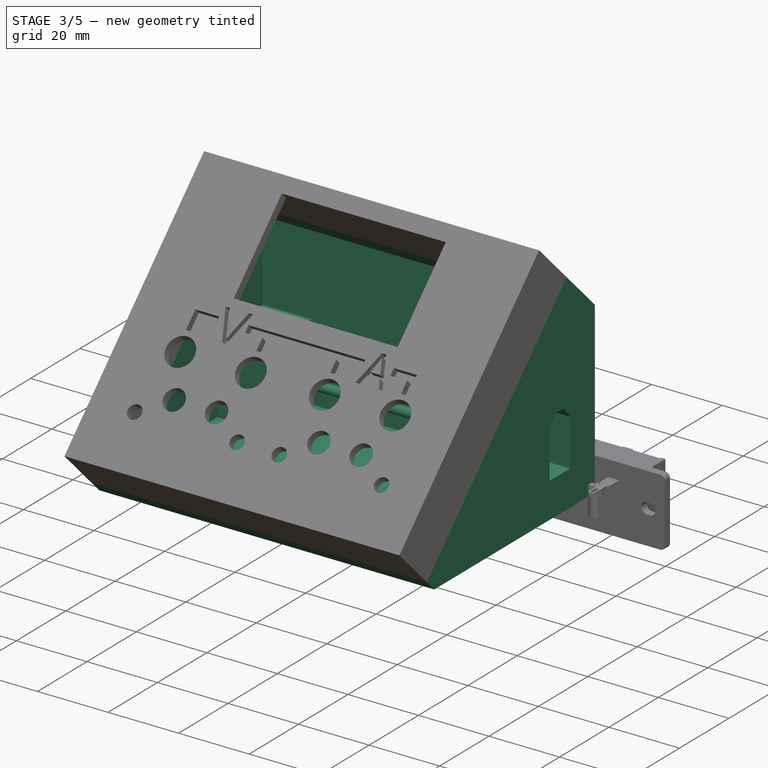
[diagram: stage 3 of 5 — iso view after this stage's code; geometry added in this stage tinted green]
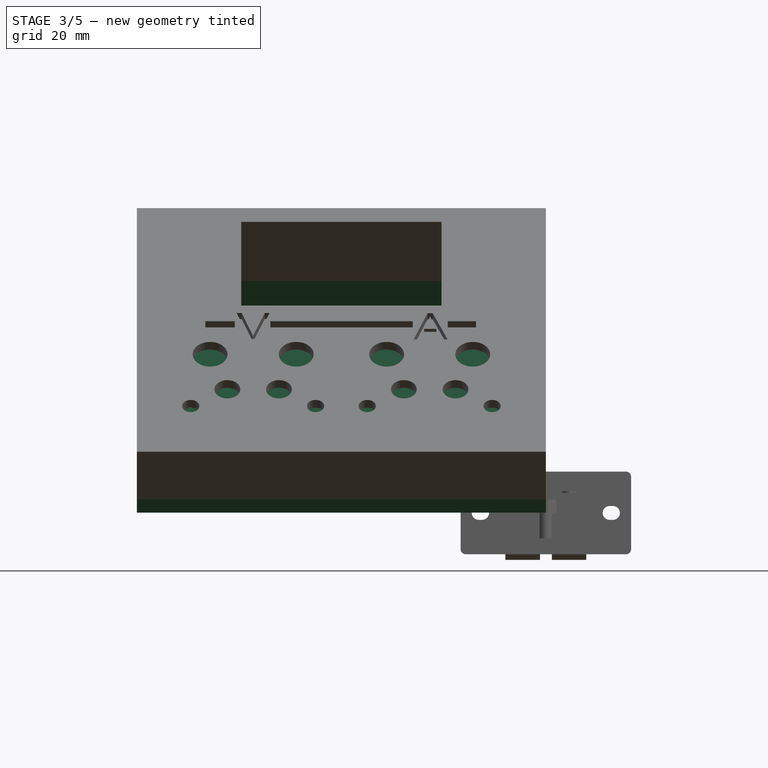
[diagram: stage 3 of 5 — front view after this stage's code; geometry added in this stage tinted green]
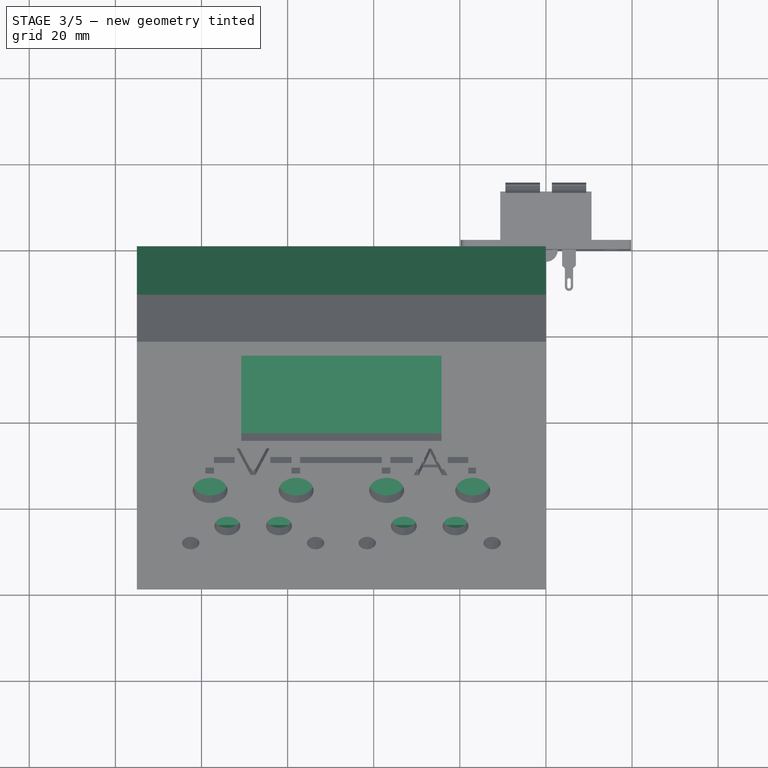
[diagram: stage 3 of 5 — top view after this stage's code; geometry added in this stage tinted green]
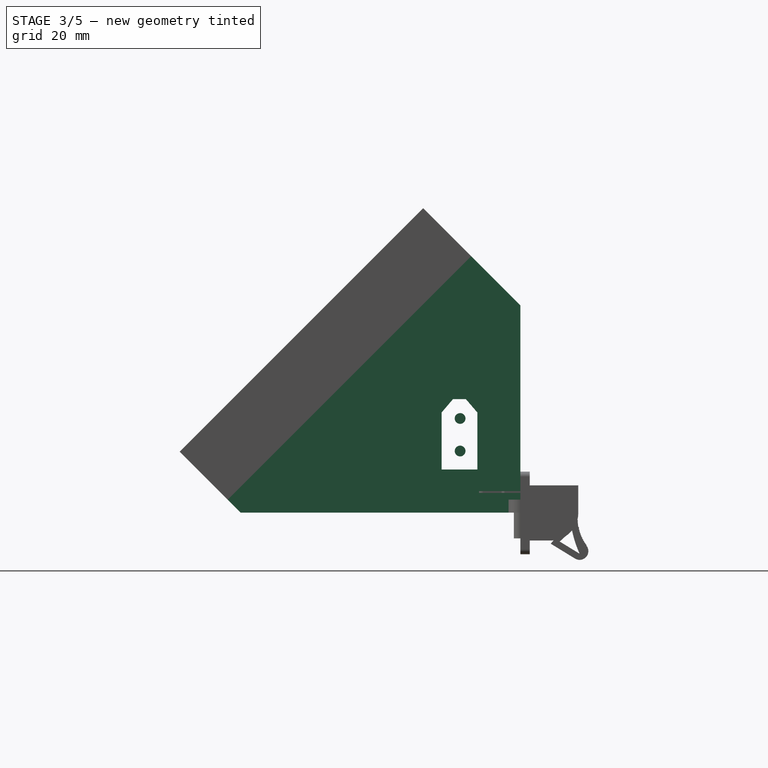
[diagram: stage 3 of 5 — right view after this stage's code; geometry added in this stage tinted green]
FEATURE [Part::FeaturePython] Slice_child0  label="Slice.0"  # WARN: FeaturePython — macro-defined, semantics opaque (R4)
  Base = -> Slice
  FilterType = 1
  Invert = false
  OverrideMaxVal = 0
  WindowFrom = 80
  WindowTo = 100
  items = 0
FEATURE [App::DocumentObjectGroup] GrExplode_Slice  label="Exploded Slice"
  Group = -> [Slice_child0,Slice_child1]
FEATURE [PartDesign::FeatureBase] Clone
  BaseFeature = -> Slice_child0
FEATURE [PartDesign::Thickness] Thickness
  Base = -> Clone [Face7]
  BaseFeature = -> Clone
  Intersection = false
  Join = 0
  Mode = 0
  Reversed = true
  SupportTransform = false
  Value = 2.5
  expr: Value = <<sp>>.epaisseurParois
FEATURE [PartDesign::Plane] DatumPlane001  label="planXt"
  AttachmentOffset = pos=(0,0,-2.5) rot=(0,0,1;0rad)
  Length = 110.737
  MapMode = 5
  Placement = pos=(-2.5,6e-16,-6e-16) rot=(0.57735,0.57735,0.57735;2.0944rad)
  ResizeMode = 0
  Support = -> [YZ_Plane002]
  Width = 102.305
  expr: .AttachmentOffset.Base.z = -<<sp>>.epaisseurParois
FEATURE [Sketcher::SketchObject] Sketch002  label="sk_renfortXt"
  FullyConstrained = true
  MapMode = 5
  Placement = pos=(-2.5,6e-16,-6e-16) rot=(0.57735,0.57735,0.57735;2.0944rad)
  Support = -> [DatumPlane001]
  expr: Constraints[32] = .Constraints.epRf
  expr: Constraints[31] = <<sp>>.epaisseurParois
  expr: .Constraints.dist = <<sp>>.xt60distanceAngleBord
  expr: Constraints[45] = <<sp>>.epaisseurParois
  expr: Constraints[15] = <<sp>>.xt60hauteurToit
  expr: .Constraints.epRf = <<sp>>.xt60epRenfort
  expr: Constraints[34] = .Constraints.epRf
  expr: Constraints[18] = .Constraints.dist
  expr: Constraints[14] = <<sp>>.xt60hauteur
  expr: Constraints[16] = <<sp>>.xt60base
  expr: Constraints[13] = <<sp>>.xt60largeurFetiere
  sketch-geometry (17):
    g0: LineSegment StartX=-18.3 StartY=10 StartZ=0 EndX=-18.3 EndY=23.25 EndZ=0
    g1: LineSegment StartX=-18.3 StartY=23.25 StartZ=0 EndX=-15.65 EndY=25.75 EndZ=0
    g2: LineSegment StartX=-15.65 StartY=25.75 StartZ=0 EndX=-12.65 EndY=25.75 EndZ=0
    g3: LineSegment StartX=-12.65 StartY=25.75 StartZ=0 EndX=-10 EndY=23.25 EndZ=0
    g4: LineSegment StartX=-10 StartY=23.25 StartZ=0 EndX=-10 EndY=10 EndZ=0
    g5: LineSegment StartX=-10 StartY=10 StartZ=0 EndX=-18.3 EndY=10 EndZ=0
    g6: LineSegment StartX=-14.15 StartY=10 StartZ=0 EndX=-14.15 EndY=25.75 EndZ=0
    g7: LineSegment StartX=-16.6431 StartY=28.25 StartZ=0 EndX=-20.8 EndY=24.3284 EndZ=0
    g8: LineSegment StartX=-20.8 StartY=24.3284 StartZ=0 EndX=-20.8 EndY=2.5 EndZ=0
    g9: LineSegment StartX=-20.8 StartY=2.5 StartZ=0 EndX=-7.5 EndY=2.5 EndZ=0
    g10: LineSegment StartX=-7.5 StartY=2.5 StartZ=0 EndX=-7.5 EndY=24.3284 EndZ=0
    g11: LineSegment StartX=-7.5 StartY=24.3284 StartZ=0 EndX=-11.6569 EndY=28.25 EndZ=0
    g12: LineSegment StartX=-11.6569 StartY=28.25 StartZ=0 EndX=-16.6431 EndY=28.25 EndZ=0
    g13: LineSegment StartX=-7.5 StartY=24.3284 StartZ=0 EndX=-2.5 EndY=24.3284 EndZ=0
    g14: LineSegment StartX=-2.5 StartY=24.3284 StartZ=0 EndX=-2.5 EndY=2.5 EndZ=0
    g15: LineSegment StartX=-2.5 StartY=2.5 StartZ=0 EndX=-7.5 EndY=2.5 EndZ=0
    g16: LineSegment StartX=-7.5 StartY=2.5 StartZ=0 EndX=-7.5 EndY=24.3284 EndZ=0
  constraints (46):
    c: Vertical(g0)
    c: Coincident(g0,g1)
    c: Coincident(g1,g2)
    c: Horizontal(g2)
    c: Coincident(g2,g3)
    c: Coincident(g3,g4)
    c: Vertical(g4)
    c: Coincident(g4,g5)
    c: Coincident(g5,g0)
    c: Horizontal(g5)
    c: Symmetric(g1,g2,g6)
    c: Equal(g0,g4)
    c: Symmetric(g0,g4,g6)
    c: DistanceX(g2,g2) = 3
    c: DistanceY(g4,g4) = 13.25
    c: DistanceY(g3,g2) = 2.5
    c: DistanceX(g5,g5) = 8.3
    c: DistanceX(g4,g-1) = 10  'dist'
    c: DistanceY(g-1,g4) = 10
    c: Coincident(g7,g8)
    c: Vertical(g8)
    c: Coincident(g8,g9)
    c: Horizontal(g9)
    c: Coincident(g9,g10)
    c: Coincident(g10,g11)
    c: Coincident(g11,g12)
    c: Coincident(g12,g7)
    c: Symmetric(g7,g10,g6)
    c: Symmetric(g7,g11,g6)
    c: Symmetric(g8,g9,g6)
    c: DistanceX(g8,g0) = 2.5  'epRf'
    c: DistanceY(g-1,g9) = 2.5
    c: Distance(g7,g1) = 2.5
    c: Parallel(g1,g7)
    c: DistanceY(g2,g11) = 2.5
    c: Coincident(g13,g14)
    c: Coincident(g14,g15)
    c: Coincident(g15,g16)
    c: Coincident(g16,g13)
    c: Horizontal(g13)
    c: Horizontal(g15)
    c: Vertical(g14)
    c: Vertical(g16)
    c: Coincident(g13,g11)
    c: Horizontal(g14,g9)
    c: DistanceX(g14,g-1) = 2.5
FEATURE [PartDesign::Pad] Pad001  label="renfortXt"
  AllowMultiFace = false
  BaseFeature = -> Thickness
  Direction = (1,1,1)
  Length = 90
  Length2 = 100
  Profile = -> Sketch002
  Reversed = true
  Type = 0
  expr: Length = <<sp>>.largeurModuleBase - 2 * <<sp>>.epaisseurParois
FEATURE [Sketcher::SketchObject] Sketch003  label="sk_trouXt"
  FullyConstrained = true
  MapMode = 5
  Placement = pos=(0,0,0) rot=(0.57735,0.57735,0.57735;2.0944rad)
  Support = -> [YZ_Plane002]
  expr: Constraints[18] = .Constraints.dist
  expr: Constraints[13] = <<sp>>.xt60base
  expr: Constraints[16] = <<sp>>.xt60largeurFetiere
  expr: Constraints[15] = <<sp>>.xt60hauteurToit + <<sp>>.xtJeu
  expr: .Constraints.dist = <<sp>>.xt60distanceAngleBord
  expr: Constraints[14] = <<sp>>.xt60hauteur
  sketch-geometry (7):
    g0: LineSegment StartX=-18.3 StartY=10 StartZ=0 EndX=-18.3 EndY=23.25 EndZ=0
    g1: LineSegment StartX=-18.3 StartY=23.25 StartZ=0 EndX=-15.65 EndY=26.35 EndZ=0
    g2: LineSegment StartX=-15.65 StartY=26.35 StartZ=0 EndX=-12.65 EndY=26.35 EndZ=0
    g3: LineSegment StartX=-12.65 StartY=26.35 StartZ=0 EndX=-10 EndY=23.25 EndZ=0
    g4: LineSegment StartX=-10 StartY=23.25 StartZ=0 EndX=-10 EndY=10 EndZ=0
    g5: LineSegment StartX=-10 StartY=10 StartZ=0 EndX=-18.3 EndY=10 EndZ=0
    g6: LineSegment StartX=-14.15 StartY=10 StartZ=0 EndX=-14.15 EndY=26.35 EndZ=0
  constraints (19):
    c: Vertical(g0)
    c: Coincident(g0,g1)
    c: Coincident(g1,g2)
    c: Horizontal(g2)
    c: Coincident(g2,g3)
    c: Coincident(g3,g4)
    c: Coincident(g4,g5)
    c: Coincident(g5,g0)
    c: Horizontal(g5)
    c: Symmetric(g1,g2,g6)
    c: Symmetric(g0,g3,g6)
    c: Vertical(g6)
    c: Symmetric(g0,g4,g6)
    c: DistanceX(g5,g5) = 8.3
    c: DistanceY(g4,g4) = 13.25
    c: DistanceY(g3,g2) = 3.1
    c: DistanceX(g2,g2) = 3
    c: DistanceX(g4,g-1) = 10  'dist'
    c: DistanceY(g-1,g4) = 10
FEATURE [PartDesign::Pocket] Pocket
  AllowMultiFace = false
  BaseFeature = -> Pad001
  Length = 95
  Length2 = 100
  Profile = -> Sketch003
  Type = 0
  expr: Length = <<sp>>.largeurModuleBase
FEATURE [PartDesign::Plane] DatumPlane002  label="planDecoupeRenfortXt"
  AttachmentOffset = pos=(0,0,2.5) rot=(0,0,1;0rad)
  Length = 140.148
  MapMode = 5
  Placement = pos=(0,-2.5,-6e-16) rot=(1,0,0;1.5708rad)
  ResizeMode = 0
  Support = -> [XZ_Plane002]
  Width = 104.716
  expr: .AttachmentOffset.Base.z = <<sp>>.epaisseurParois
FEATURE [Sketcher::SketchObject] Sketch004  label="sk_decoupRenfXt"
  FullyConstrained = true
  MapMode = 5
  Placement = pos=(0,-2.5,-6e-16) rot=(1,0,0;1.5708rad)
  Support = -> [DatumPlane002]
  expr: Constraints[11] = <<sp>>.largeurModuleBase - (<<sp>>.xt60longueurRenfortGrand + <<sp>>.epaisseurParois)
  expr: Constraints[10] = <<sp>>.xt60LongueurRenfortPetit + <<sp>>.epaisseurParois
  expr: Constraints[9] = <<sp>>.xt60distanceAngleBord + <<sp>>.xt60hauteur + <<sp>>.xt60hauteurToit + <<sp>>.xt60epRenfort
  expr: Constraints[8] = <<sp>>.epaisseurParois
  sketch-geometry (4):
    g0: LineSegment StartX=-78.5 StartY=28.25 StartZ=0 EndX=-8.5 EndY=28.25 EndZ=0
    g1: LineSegment StartX=-8.5 StartY=28.25 StartZ=0 EndX=-8.5 EndY=2.5 EndZ=0
    g2: LineSegment StartX=-8.5 StartY=2.5 StartZ=0 EndX=-78.5 EndY=2.5 EndZ=0
    g3: LineSegment StartX=-78.5 StartY=2.5 StartZ=0 EndX=-78.5 EndY=28.25 EndZ=0
  constraints (12):
    c: Coincident(g0,g1)
    c: Coincident(g1,g2)
    c: Coincident(g2,g3)
    c: Coincident(g3,g0)
    c: Horizontal(g0)
    c: Horizontal(g2)
    c: Vertical(g1)
    c: Vertical(g3)
    c: DistanceY(g-1,g1) = 2.5
    c: DistanceY(g-1,g0) = 28.25
    c: DistanceX(g1,g-1) = 8.5
    c: DistanceX(g2,g-1) = 78.5
FEATURE [PartDesign::Pocket] Pocket001  label="decoupeRenfXt"
  AllowMultiFace = false
  BaseFeature = -> Pocket
  Length = 23.3
  Length2 = 100
  Profile = -> Sketch004
  Reversed = true
  Type = 0
  expr: Length = <<sp>>.xt60distanceAngleBord + <<sp>>.xt60base + 2 * <<sp>>.xt60epRenfort
FEATURE [Spreadsheet::Sheet] Spreadsheet001  label="tige"
  cells = A2=planBaseTigeposX; B2(planBaseTigeposX)==xtDistCorpBaseConnect; A3=xtDistCorpBaseConnect; B3(xtDistCorpBaseConnect)==12.13 - 6.95; C3=male; D3=8.46 (du bor à l'épaulement)-prof connection (6.95); A4=xtFemdistBaseConnect; B4(xtFemdistBaseConnect)==20.4 - 9.300000000000001; C4=femelle; D4=20.39(hors tou) 17.15 (du bord à l'épaulment connecteur); A5=tigeLong; B5(tigeLong)==<<sp>>.largeurModuleBase - xtDistCorpBaseConnect - xtFemdistBaseConnect - tigeJeu; A6=tigeJeu; B6(tigeJeu)=0.1; A7=tigePosX; B7(tigePosX)=14; A8=tigePosY; B8(tigePosY)=14.3; A9=tigeDiam; B9(tigeDiam)=2.5; A10=xtEcartBroches; B10(xtEcartBroches)=7.56
FEATURE [PartDesign::Plane] DatumPlane012  label="planBaseTige"
  AttachmentOffset = pos=(0,0,-5.18) rot=(0,0,1;0rad)
  Length = 60
  MapMode = 5
  Placement = pos=(-5.18,1.2e-15,-1.2e-15) rot=(0.57735,0.57735,0.57735;2.0944rad)
  ResizeMode = 0
  Support = -> [YZ_Plane012]
  Width = 60
  expr: .AttachmentOffset.Base.z = -<<tige>>.planBaseTigeposX
FEATURE [Sketcher::SketchObject] Sketch032  label="sk_tiges"
  FullyConstrained = true
  MapMode = 5
  Placement = pos=(-5.18,1.2e-15,-1.2e-15) rot=(0.57735,0.57735,0.57735;2.0944rad)
  Support = -> [DatumPlane012]
  expr: Constraints[2] = <<tige>>.tigePosX
  expr: Constraints[1] = <<tige>>.tigePosY
  expr: Constraints[0] = <<tige>>.tigeDiam
  sketch-geometry (1):
    g0: Circle CenterX=-14 CenterY=14.3 CenterZ=0 NormalX=0 NormalY=0 NormalZ=1 AngleXU=0 Radius=1.25
  constraints (3):
    c: Diameter(g0) = 2.5
    c: DistanceY(g-1,g0) = 14.3
    c: DistanceX(g0,g-1) = 14
FEATURE [PartDesign::Pad] Pad017  label="tigeBasse"
  AllowMultiFace = false
  Direction = (1,1,1)
  Length = 78.62
  Length2 = 100
  Placement = pos=(-5.18,1e-15,-1e-15) rot=(0.57735,0.57735,0.57735;2.0944rad)
  Profile = -> Sketch032
  Reversed = true
  Type = 0
  expr: Length = <<tige>>.tigeLong
FEATURE [PartDesign::Body] Body007  label="tigeLaiton"
  Group = -> [DatumPlane012,Sketch032,Pad017]
  Origin = -> Origin016
  Tip = -> Pad017
FEATURE [PartDesign::Plane] DatumPlane013  label="planTige2"
  AttachmentOffset = pos=(0,0,-5.18) rot=(0,0,1;0rad)
  Length = 60
  MapMode = 5
  Placement = pos=(-5.18,1.2e-15,-1.2e-15) rot=(0.57735,0.57735,0.57735;2.0944rad)
  ResizeMode = 0
  Support = -> [YZ_Plane014]
  Width = 60
  expr: .AttachmentOffset.Base.z = -<<tige>>.planBaseTigeposX
FEATURE [Sketcher::SketchObject] Sketch033  label="sk_tige2"
  FullyConstrained = true
  MapMode = 5
  Placement = pos=(-5.18,1.2e-15,-1.2e-15) rot=(0.57735,0.57735,0.57735;2.0944rad)
  Support = -> [DatumPlane013]
  expr: Constraints[2] = <<tige>>.tigePosY + <<tige>>.xtEcartBroches
  expr: Constraints[1] = <<tige>>.tigePosX
  expr: Constraints[0] = <<tige>>.tigeDiam
  sketch-geometry (1):
    g0: Circle CenterX=-14 CenterY=21.86 CenterZ=0 NormalX=0 NormalY=0 NormalZ=1 AngleXU=0 Radius=1.25
  constraints (3):
    c: Diameter(g0) = 2.5
    c: DistanceX(g0,g-1) = 14
    c: DistanceY(g-1,g0) = 21.86
FEATURE [PartDesign::Pad] Pad018
  AllowMultiFace = false
  Direction = (1,1,1)
  Length = 78.62
  Length2 = 100
  Placement = pos=(-5.18,1e-15,-1e-15) rot=(0.57735,0.57735,0.57735;2.0944rad)
  Profile = -> Sketch033
  Reversed = true
  Type = 0
  expr: Length = <<tige>>.tigeLong
FEATURE [PartDesign::Body] Body008  label="tige2"
  Group = -> [DatumPlane013,Sketch033,Pad018]
  Origin = -> Origin018
  Tip = -> Pad018
FEATURE [App::Part] Part009  label="tigeLaiton001"
  Group = -> [Body007,Spreadsheet001,Body008]
  Origin = -> Origin017
FEATURE [Sketcher::SketchObject] Sketch034  label="Sketch"
  FullyConstrained = false
  MapMode = 5
  Support = -> [XY_Plane015]
  sketch-geometry (1):
    g0: Circle CenterX=0 CenterY=0 CenterZ=0 NormalX=0 NormalY=0 NormalZ=1 AngleXU=0 Radius=2.75
  constraints (2):
    c: Coincident(g0,g-1)
    c: Diameter(g0) = 5.5
FEATURE [PartDesign::Pad] Pad019  label="tete"
  AllowMultiFace = false
  Direction = (1,1,1)
  Length = 3
  Length2 = 100
  Profile = -> Sketch034
  Type = 0
FEATURE [Sketcher::SketchObject] Sketch001
  FullyConstrained = false
  MapMode = 5
  Placement = pos=(0,0,0) rot=(1,0,0;3.14159rad)
  Support = -> [Pad019]
  sketch-geometry (1):
    g0: Circle CenterX=0 CenterY=0 CenterZ=0 NormalX=0 NormalY=0 NormalZ=1 AngleXU=0 Radius=1.5
  constraints (2):
    c: Coincident(g0,g-1)
    c: Diameter(g0) = 3
FEATURE [PartDesign::Pad] Pad020  label="corps"
  AllowMultiFace = false
  BaseFeature = -> Pad019
  Direction = (1,1,1)
  Length = 6
  Length2 = 100
  Profile = -> Sketch001
  Type = 0
FEATURE [PartDesign::Plane] DatumPlane014
  AttachmentOffset = pos=(0,0,3) rot=(0,0,1;0rad)
  Length = 60
  MapMode = 5
  Placement = pos=(0,0,3) rot=(0,0,1;0rad)
  ResizeMode = 0
  Support = -> [XY_Plane015]
  Width = 60
FEATURE [Sketcher::SketchObject] Sketch035  label="Sketch002"
  FullyConstrained = false
  MapMode = 5
  Placement = pos=(0,0,3) rot=(0,0,1;0rad)
  Support = -> [DatumPlane014]
  sketch-geometry (7):
    g0: LineSegment StartX=0.721688 StartY=-1.25 StartZ=0 EndX=1.44338 EndY=1.0119e-12 EndZ=0
    g1: LineSegment StartX=1.44338 StartY=1.0119e-12 StartZ=0 EndX=0.721688 EndY=1.25 EndZ=0
    g2: LineSegment StartX=0.721688 StartY=1.25 StartZ=0 EndX=-0.721688 EndY=1.25 EndZ=0
    g3: LineSegment StartX=-0.721688 StartY=1.25 StartZ=0 EndX=-1.44338 EndY=8.689e-13 EndZ=0
    g4: LineSegment StartX=-1.44338 StartY=8.689e-13 StartZ=0 EndX=-0.721688 EndY=-1.25 EndZ=0
    g5: LineSegment StartX=-0.721688 StartY=-1.25 StartZ=0 EndX=0.721688 EndY=-1.25 EndZ=0
    g6: Circle CenterX=0 CenterY=0 CenterZ=0 NormalX=0 NormalY=0 NormalZ=1 AngleXU=0 Radius=1.44338
  constraints (16):
    c: Coincident(g0,g1)
    c: Coincident(g1,g2)
    c: Coincident(g2,g3)
    c: Coincident(g3,g4)
    c: Coincident(g4,g5)
    c: Coincident(g5,g0)
    c: Equal(g0, g1-g5) x5
    c: PointOnObject(g0,g6)
    c: PointOnObject(g1,g6)
    c: PointOnObject(g2,g6)
    c: PointOnObject(g3,g6)
    c: PointOnObject(g4,g6)
    c: PointOnObject(g5,g6)
    c: Coincident(g6,g-1)
    c: Horizontal(g2)
    c: DistanceY(g0,g1) = 2.5
FEATURE [PartDesign::Pocket] Pocket016  label="emprunte"
  AllowMultiFace = false
  BaseFeature = -> Pad020
  Length = 4
  Length2 = 100
  Profile = -> Sketch035
  Type = 0
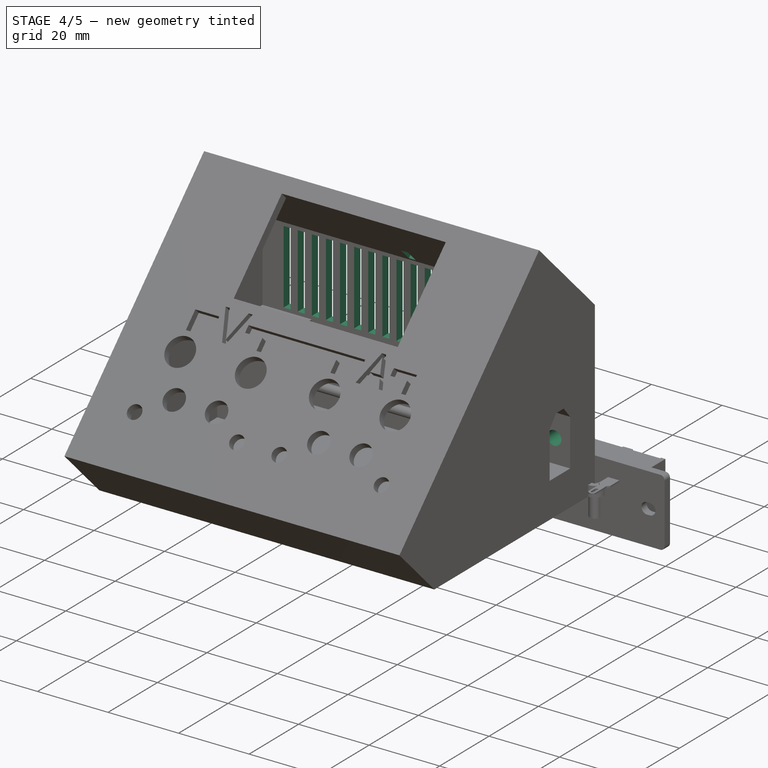
[diagram: stage 4 of 5 — iso view after this stage's code; geometry added in this stage tinted green]
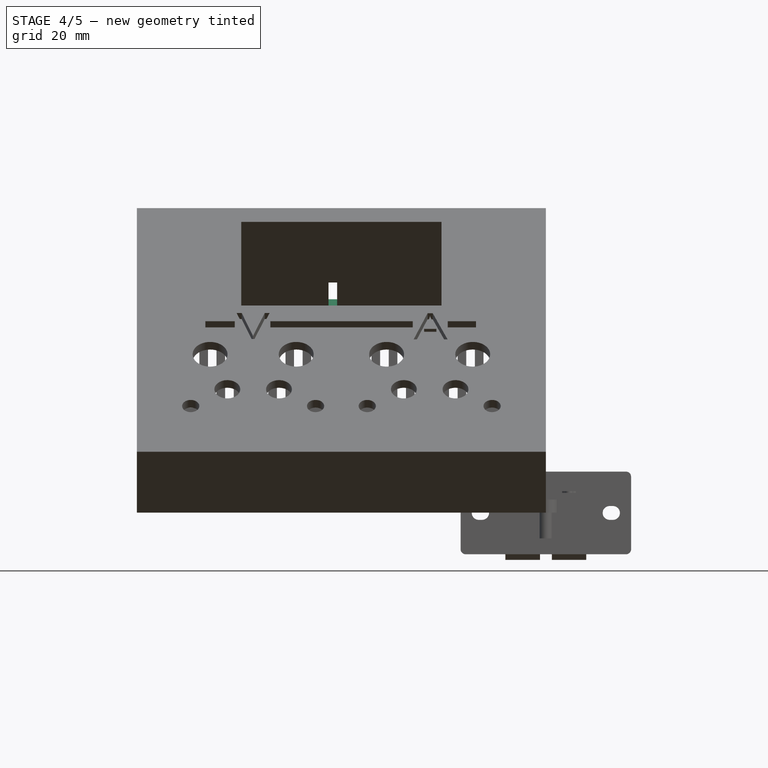
[diagram: stage 4 of 5 — front view after this stage's code; geometry added in this stage tinted green]
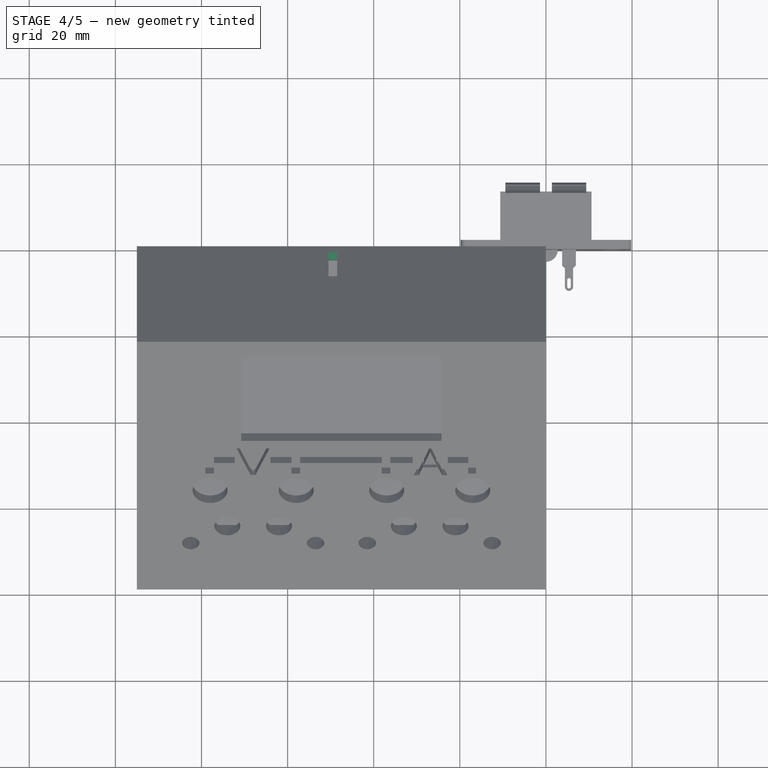
[diagram: stage 4 of 5 — top view after this stage's code; geometry added in this stage tinted green]
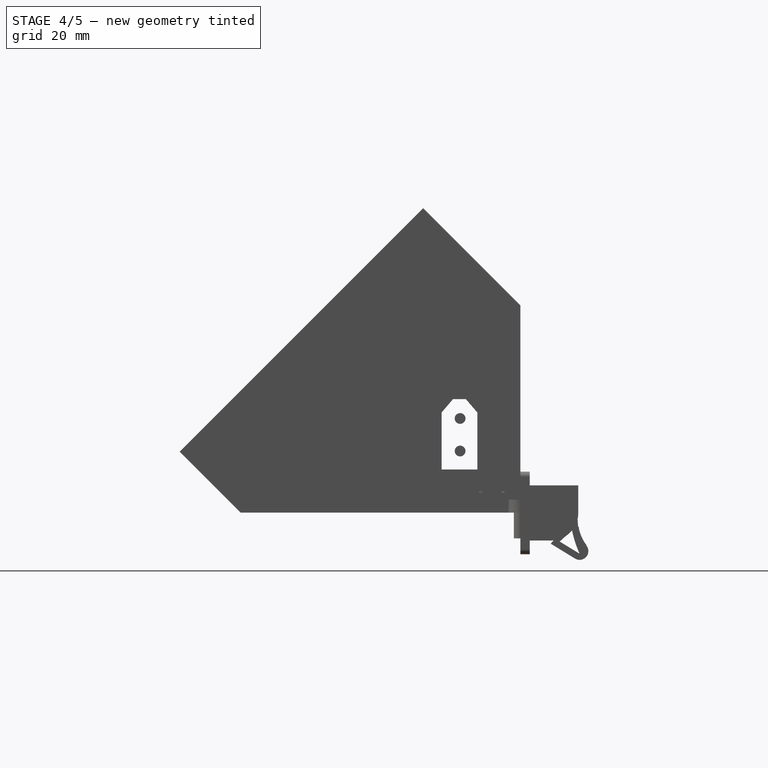
[diagram: stage 4 of 5 — right view after this stage's code; geometry added in this stage tinted green]
FEATURE [Sketcher::SketchObject] Sketch005  label="xt60PercagePostMale"
  FullyConstrained = true
  MapMode = 5
  Placement = pos=(0,0,0) rot=(1,0,0;1.5708rad)
  Support = -> [XZ_Plane002]
  expr: Constraints[2] = <<sp>>.insertHauteur
  expr: Constraints[1] = <<sp>>.insertDistanceTrouBordMale
  expr: Constraints[0] = <<sp>>.insertDiamPercage
  sketch-geometry (1):
    g0: Circle CenterX=-4.5 CenterY=16.625 CenterZ=0 NormalX=0 NormalY=0 NormalZ=1 AngleXU=0 Radius=2
  constraints (3):
    c: Diameter(g0) = 4
    c: DistanceX(g0,g-1) = 4.5
    c: DistanceY(g-1,g0) = 16.625
FEATURE [Part::Feature] Part__Feature  label="XT60FemaleConnector"
  shape: bbox 20.5 x 7.501 x 16.55 mm, 417 faces, 3 solids (baked)
FEATURE [App::Part] Part001  label="xt60fem"
  Group = -> [Part__Feature]
  Origin = -> Origin004
  Placement = pos=(-87,-14,16.7) rot=(1,0,0;3.14159rad)
FEATURE [Part::Feature] Part__Feature001  label="XT60MaleConnector"
  shape: bbox 20.2 x 7.5 x 16.55 mm, 393 faces, 3 solids (baked)
FEATURE [App::Part] Part002  label="xt60Male"
  Group = -> [Part__Feature001]
  Origin = -> Origin005
  Placement = pos=(0.4,-13.95,16.75) rot=(0,1,0;3.14159rad)
FEATURE [PartDesign::Pocket] Pocket002  label="insertXtMale"
  AllowMultiFace = false
  BaseFeature = -> Pocket001
  Length = 10
  Length2 = 100
  Profile = -> Sketch005
  Reversed = true
  Type = 0
  expr: Length = <<sp>>.insertProfondeurPercage
FEATURE [Sketcher::SketchObject] Sketch006  label="xt60PercagePostFem"
  FullyConstrained = true
  MapMode = 5
  Placement = pos=(0,0,0) rot=(1,0,0;1.5708rad)
  Support = -> [XZ_Plane002]
  expr: Constraints[2] = <<sp>>.insertHauteur
  expr: Constraints[1] = <<sp>>.insertDistanceTrouBordFem
  expr: Constraints[0] = <<sp>>.insertDiamPercage
  sketch-geometry (1):
    g0: Circle CenterX=-83 CenterY=16.625 CenterZ=0 NormalX=0 NormalY=0 NormalZ=1 AngleXU=0 Radius=2
  constraints (3):
    c: Diameter(g0) = 4
    c: DistanceX(g0,g-1) = 83
    c: DistanceY(g-1,g0) = 16.625
FEATURE [PartDesign::Pocket] Pocket003  label="insertXt60Fem"
  AllowMultiFace = false
  BaseFeature = -> Pocket002
  Length = 10
  Length2 = 100
  Profile = -> Sketch006
  Reversed = true
  Type = 0
  expr: Length = <<sp>>.insertProfondeurPercage
FEATURE [PartDesign::Plane] DatumPlane003
  AttachmentOffset = pos=(0,0,2.5) rot=(0,0,1;0rad)
  Length = 141.128
  MapMode = 2
  Placement = pos=(0,0,2.5) rot=(0,0,1;0rad)
  ResizeMode = 0
  Support = -> [XY_Plane002]
  Width = 114.128
  expr: .AttachmentOffset.Base.z = <<sp>>.epaisseurParois
FEATURE [PartDesign::Plane] DatumPlane004  label="planTrancheur"
  AttachmentOffset = pos=(0,0,71) rot=(-1,0,0;0.785398rad)
  Length = 144.55
  MapMode = 5
  Placement = pos=(0,-71,-1.58e-14) rot=(1,0,0;0.785398rad)
  ResizeMode = 0
  Support = -> [XZ_Plane002]
  Width = 150.11
  expr: .AttachmentOffset.Base.z = <<sp>>.planTrancheur
FEATURE [Sketcher::SketchObject] Sketch008
  FullyConstrained = true
  MapMode = 5
  Placement = pos=(0,-71,-2.13e-14) rot=(1,0,0;0.785398rad)
  Support = -> [DatumPlane004]
  expr: Constraints[22] = <<sp>>.largeurModuleBase - <<sp>>.epaisseurParois
  expr: Constraints[21] = <<sp>>.insertFAVDistBord
  expr: .Constraints.dist = <<sp>>.epaisseurParois
  expr: Constraints[16] = <<sp>>.insertDiamPercage / 2 + <<sp>>.insertFAVMargeDist
  expr: Constraints[13] = <<sp>>.epaisseurParois
  expr: Constraints[1] = <<sp>>.insertFavDistAuZeroDuPLan
  sketch-geometry (7):
    g0: LineSegment StartX=-2.5 StartY=4.24264 StartZ=0 EndX=-92.5 EndY=4.24264 EndZ=0
    g1: LineSegment StartX=-6.5 StartY=14.7426 StartZ=0 EndX=-2.5 EndY=14.7426 EndZ=0
    g2: LineSegment StartX=-2.5 StartY=14.7426 StartZ=0 EndX=-2.5 EndY=6.74264 EndZ=0
    g3: LineSegment StartX=-2.5 StartY=6.74264 StartZ=0 EndX=-10.5 EndY=6.74264 EndZ=0
    g4: LineSegment StartX=-10.5 StartY=6.74264 StartZ=0 EndX=-10.5 EndY=10.7426 EndZ=0
    g5: ArcOfCircle CenterX=-6.5 CenterY=10.7426 CenterZ=0 NormalX=0 NormalY=0 NormalZ=1 AngleXU=0 Radius=4 StartAngle=1.5708 EndAngle=3.14159
    g6: LineSegment StartX=-6.5 StartY=10.7426 StartZ=0 EndX=-6.5 EndY=6.74264 EndZ=0
  constraints (23):
    c: Horizontal(g0)
    c: DistanceY(g-1,g0) = 4.24264
    c: DistanceX(g0,g-1) = 2.5  'dist'
    c: Horizontal(g1)
    c: Coincident(g1,g2)
    c: Vertical(g2)
    c: Coincident(g2,g3)
    c: Horizontal(g3)
    c: Coincident(g3,g4)
    c: Vertical(g4)
    c: Vertical(g2,g0)
    c: Equal(g3,g2)
    c: Equal(g4,g1)
    c: DistanceY(g0,g2) = 2.5
    c: Coincident(g5,g4)
    c: Coincident(g5,g1)
    c: DistanceX(g5,g2) = 4
    c: Coincident(g6,g5)
    c: PointOnObject(g6,g3)
    c: Vertical(g6)
    c: Vertical(g5,g1)
    c: DistanceX(g3,g3) = 8
    c: DistanceX(g0,g-1) = 92.5
FEATURE [PartDesign::Pad] Pad003  label="padTrouFAVDroite"
  AllowMultiFace = false
  BaseFeature = -> Pocket003
  Direction = (1,1,1)
  Length = 10
  Length2 = 100
  Profile = -> Sketch008
  Reversed = true
  Type = 3
  UpToFace = -> DatumPlane003
FEATURE [Sketcher::SketchObject] Sketch009
  FullyConstrained = true
  MapMode = 5
  Placement = pos=(0,-71,-2.13e-14) rot=(1,0,0;0.785398rad)
  Support = -> [DatumPlane004]
  expr: Constraints[15] = <<sp>>.epaisseurParois
  expr: Constraints[14] = <<sp>>.epaisseurParois
  expr: Constraints[13] = <<sp>>.insertFavDistAuZeroDuPLan
  expr: Constraints[12] = <<sp>>.largeurModuleBase
  expr: Constraints[11] = .Constraints.larg / 2
  expr: Constraints[8] = .Constraints.larg
  expr: .Constraints.larg = <<sp>>.insertFAVDistBord
  sketch-geometry (6):
    g0: LineSegment StartX=-92.5 StartY=6.74264 StartZ=0 EndX=-84.5 EndY=6.74264 EndZ=0
    g1: LineSegment StartX=-84.5 StartY=6.74264 StartZ=0 EndX=-84.5 EndY=10.7426 EndZ=0
    g2: LineSegment StartX=-88.5 StartY=14.7426 StartZ=0 EndX=-92.5 EndY=14.7426 EndZ=0
    g3: LineSegment StartX=-92.5 StartY=14.7426 StartZ=0 EndX=-92.5 EndY=6.74264 EndZ=0
    g4: ArcOfCircle CenterX=-88.5 CenterY=10.7426 CenterZ=0 NormalX=0 NormalY=0 NormalZ=1 AngleXU=0 Radius=4 StartAngle=0 EndAngle=1.5708
    g5: GeomPoint X=-95 Y=4.24264 Z=0
  constraints (16):
    c: Coincident(g0,g1)
    c: Coincident(g2,g3)
    c: Coincident(g3,g0)
    c: Horizontal(g0)
    c: Horizontal(g2)
    c: Vertical(g1)
    c: Vertical(g3)
    c: DistanceX(g0,g0) = 8  'larg'
    c: DistanceY(g3,g3) = 8
    c: Tangent(g2,g4) = -1.5708
    c: Tangent(g1,g4) = -1.5708
    c: DistanceX(g0,g4) = 4
    c: DistanceX(g5,g-1) = 95
    c: DistanceY(g-1,g5) = 4.24264
    c: DistanceX(g5,g0) = 2.5
    c: DistanceY(g5,g0) = 2.5
FEATURE [PartDesign::Pad] Pad004  label="padTrouFavGauche"
  AllowMultiFace = false
  BaseFeature = -> Pad003
  Direction = (1,1,1)
  Length = 10
  Length2 = 100
  Profile = -> Sketch009
  Type = 3
  UpToFace = -> DatumPlane003 [Plane]
FEATURE [Sketcher::SketchObject] Sketch010
  FullyConstrained = true
  MapMode = 5
  Placement = pos=(0,-71,-2.13e-14) rot=(1,0,0;0.785398rad)
  Support = -> [DatumPlane004]
  expr: Constraints[2] = <<sp>>.insertDiamPercage
  expr: Constraints[1] = <<sp>>.insertFavDistAuZeroDuPLan + <<sp>>.epaisseurParois + <<sp>>.insertFAVDistBord / 2
  expr: Constraints[0] = <<sp>>.insertFAVDistBord / 2 + <<sp>>.epaisseurParois
  sketch-geometry (1):
    g0: Circle CenterX=-6.5 CenterY=10.7426 CenterZ=0 NormalX=0 NormalY=0 NormalZ=1 AngleXU=0 Radius=2
  constraints (3):
    c: DistanceX(g0,g-1) = 6.5
    c: DistanceY(g-1,g0) = 10.7426
    c: Diameter(g0) = 4
FEATURE [PartDesign::Pocket] Pocket004  label="trouDroit"
  AllowMultiFace = false
  BaseFeature = -> Pad004
  Length = 5
  Length2 = 100
  Profile = -> Sketch010
  Type = 1
FEATURE [Sketcher::SketchObject] Sketch011
  FullyConstrained = true
  MapMode = 5
  Placement = pos=(0,-71,-2.13e-14) rot=(1,0,0;0.785398rad)
  Support = -> [DatumPlane004]
  expr: Constraints[2] = <<sp>>.insertFavDistAuZeroDuPLan + <<sp>>.epaisseurParois + <<sp>>.insertFAVDistBord / 2
  expr: Constraints[1] = <<sp>>.largeurModuleBase - <<sp>>.epaisseurParois - <<sp>>.insertFAVDistBord / 2
  expr: Constraints[0] = <<sp>>.insertDiamPercage
  sketch-geometry (1):
    g0: Circle CenterX=-88.5 CenterY=10.7426 CenterZ=0 NormalX=0 NormalY=0 NormalZ=1 AngleXU=0 Radius=2
  constraints (3):
    c: Diameter(g0) = 4
    c: DistanceX(g0,g-1) = 88.5
    c: DistanceY(g-1,g0) = 10.7426
FEATURE [PartDesign::Pocket] Pocket005  label="trouGauche"
  AllowMultiFace = false
  BaseFeature = -> Pocket004
  Length = 5
  Length2 = 100
  Profile = -> Sketch011
  Type = 1
FEATURE [PartDesign::Plane] DatumPlane005  label="planTeteVisFav"
  AttachmentOffset = pos=(0,0,68) rot=(-1,0,0;0.785398rad)
  Length = 144.55
  MapMode = 5
  Placement = pos=(0,-68,-1.51e-14) rot=(1,0,0;0.785398rad)
  ResizeMode = 0
  Support = -> [XZ_Plane002]
  Width = 150.11
  expr: .AttachmentOffset.Base.z = <<sp>>.planTrancheur - 3
FEATURE [Sketcher::SketchObject] Sketch012
  ExternalGeometry = -> [Pocket005]
  FullyConstrained = true
  MapMode = 5
  Placement = pos=(0,-68,-1.42e-14) rot=(1,0,0;0.785398rad)
  Support = -> [DatumPlane005]
  expr: Constraints[1] = <<sp>>.visM3DiamEncastrement
  sketch-geometry (2):
    g0: Circle CenterX=-6.5 CenterY=8.62132 CenterZ=0 NormalX=0 NormalY=0 NormalZ=1 AngleXU=0 Radius=3
    g1: Circle CenterX=-88.5 CenterY=8.62132 CenterZ=0 NormalX=0 NormalY=0 NormalZ=1 AngleXU=0 Radius=3
  constraints (4):
    c: Equal(g0,g1)
    c: Diameter(g1) = 6
    c: Coincident(g1,g-4)
    c: Coincident(g-3,g0)
FEATURE [PartDesign::Pocket] Pocket006  label="evidementTeteVisFav"
  AllowMultiFace = false
  BaseFeature = -> Pocket005
  Length = 20
  Length2 = 100
  Profile = -> Sketch012
  Type = 1
FEATURE [Sketcher::SketchObject] Sketch014
  FullyConstrained = true
  MapMode = 5
  Placement = pos=(0,0,0) rot=(1,0,0;1.5708rad)
  Support = -> [XZ_Plane002]
  expr: Constraints[15] = <<sp>>.hauteurDuDos - <<sp>>.ventilDistBordFente
  expr: Constraints[14] = <<sp>>.ventilEcartfente / 2
  expr: Constraints[13] = <<sp>>.ventilLargeurFentes
  expr: Constraints[12] = <<sp>>.xt60distanceAngleBord + <<sp>>.xt60hauteur + <<sp>>.ventilDistBordFente
  expr: Constraints[3] = <<sp>>.largeurModuleBase / 2
  expr: Constraints[2] = <<sp>>.hauteurDuDos
  sketch-geometry (5):
    g0: LineSegment StartX=-47.5 StartY=0 StartZ=0 EndX=-47.5 EndY=48.1371 EndZ=0
    g1: LineSegment StartX=-50.5 StartY=46.1371 StartZ=0 EndX=-48.5 EndY=46.1371 EndZ=0
    g2: LineSegment StartX=-48.5 StartY=46.1371 StartZ=0 EndX=-48.5 EndY=25.25 EndZ=0
    g3: LineSegment StartX=-48.5 StartY=25.25 StartZ=0 EndX=-50.5 EndY=25.25 EndZ=0
    g4: LineSegment StartX=-50.5 StartY=25.25 StartZ=0 EndX=-50.5 EndY=46.1371 EndZ=0
  constraints (16):
    c: PointOnObject(g0,g-1)
    c: Vertical(g0)
    c: DistanceY(g0,g0) = 48.1371
    c: DistanceX(g0,g-1) = 47.5
    c: Coincident(g1,g2)
    c: Coincident(g2,g3)
    c: Coincident(g3,g4)
    c: Coincident(g4,g1)
    c: Horizontal(g1)
    c: Horizontal(g3)
    c: Vertical(g2)
    c: Vertical(g4)
    c: DistanceY(g-1,g2) = 25.25
    c: DistanceX(g1,g1) = 2
    c: DistanceX(g2,g0) = 1
    c: DistanceY(g-1,g1) = 46.1371
FEATURE [PartDesign::Pocket] Pocket008  label="ventilFente1"
  AllowMultiFace = false
  BaseFeature = -> Pocket006
  Length = 2.5
  Length2 = 100
  Profile = -> Sketch014
  Reversed = true
  Type = 0
  expr: Length = <<sp>>.epaisseurParois
FEATURE [PartDesign::LinearPattern] LinearPattern  label="ventilDosRepeat1"
  BaseFeature = -> Pocket008
  Direction = -> Sketch014 [H_Axis]
  Length = 36
  Occurrences = 10
  Originals = -> [Pocket008]
  Reversed = true
  expr: Occurrences = <<sp>>.ventilNbrFents
  expr: Length = <<sp>>.ventilLargeurRepet
FEATURE [PartDesign::LinearPattern] LinearPattern001  label="ventilDosRepeat2"
  BaseFeature = -> LinearPattern
  Direction = -> Sketch014 [H_Axis]
  Length = 40
  Occurrences = 11
  Originals = -> [Pocket008]
  expr: Occurrences = <<sp>>.ventilNbrFents + 1
  expr: Length = <<sp>>.ventilLargeurRepet + <<sp>>.ventilEcartfente + <<sp>>.ventilLargeurFentes
FEATURE [PartDesign::Plane] DatumPlane006  label="planVentilSup"
  AttachmentOffset = pos=(0,0,-48.1371) rot=(1,0,0;0.785398rad)
  Length = 144.55
  MapMode = 5
  Placement = pos=(0,48.1371,1.07e-14) rot=(1,0,0;2.35619rad)
  ResizeMode = 0
  Support = -> [XZ_Plane002]
  Width = 150.11
  expr: .AttachmentOffset.Base.z = -<<sp>>.hauteurDuDos
FEATURE [Sketcher::SketchObject] Sketch015
  FullyConstrained = true
  MapMode = 5
  Placement = pos=(0,48.1371,1.07e-14) rot=(1,0,0;2.35619rad)
  Support = -> [DatumPlane006]
  expr: Constraints[9] = <<sp>>.longPetitRetSupSansFav - 2 * <<sp>>.ventilDistBordFente - <<sp>>.favBordureProf
  expr: Constraints[11] = (<<sp>>.largeurModuleBase + <<sp>>.ventilEcartfente) / 2
  expr: Constraints[10] = <<sp>>.ventilLargeurFentes
  expr: Constraints[8] = <<sp>>.distanceAuZeroPlanBorArriere + <<sp>>.ventilDistBordFente
  sketch-geometry (4):
    g0: LineSegment StartX=-48.5 StartY=78.0926 StartZ=0 EndX=-50.5 EndY=78.0926 EndZ=0
    g1: LineSegment StartX=-50.5 StartY=78.0926 StartZ=0 EndX=-50.5 EndY=70.0761 EndZ=0
    g2: LineSegment StartX=-50.5 StartY=70.0761 StartZ=0 EndX=-48.5 EndY=70.0761 EndZ=0
    g3: LineSegment StartX=-48.5 StartY=70.0761 StartZ=0 EndX=-48.5 EndY=78.0926 EndZ=0
  constraints (12):
    c: Coincident(g0,g1)
    c: Coincident(g1,g2)
    c: Coincident(g2,g3)
    c: Coincident(g3,g0)
    c: Horizontal(g0)
    c: Horizontal(g2)
    c: Vertical(g1)
    c: Vertical(g3)
    c: DistanceY(g-1,g2) = 70.0761
    c: DistanceY(g2,g0) = 8.01652
    c: DistanceX(g0,g0) = 2
    c: DistanceX(g2,g-1) = 48.5
FEATURE [PartDesign::Pocket] Pocket009  label="ventilSupFente"
  AllowMultiFace = false
  BaseFeature = -> LinearPattern001
  Length = 5
  Length2 = 100
  Profile = -> Sketch015
  Reversed = true
  Type = 0
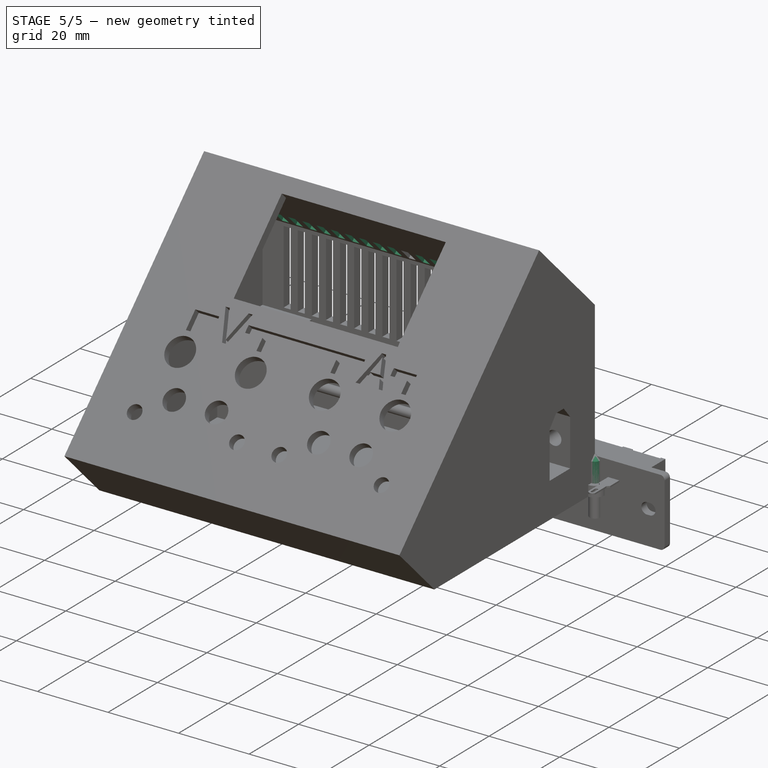
[diagram: stage 5 of 5 — iso view after this stage's code; geometry added in this stage tinted green]
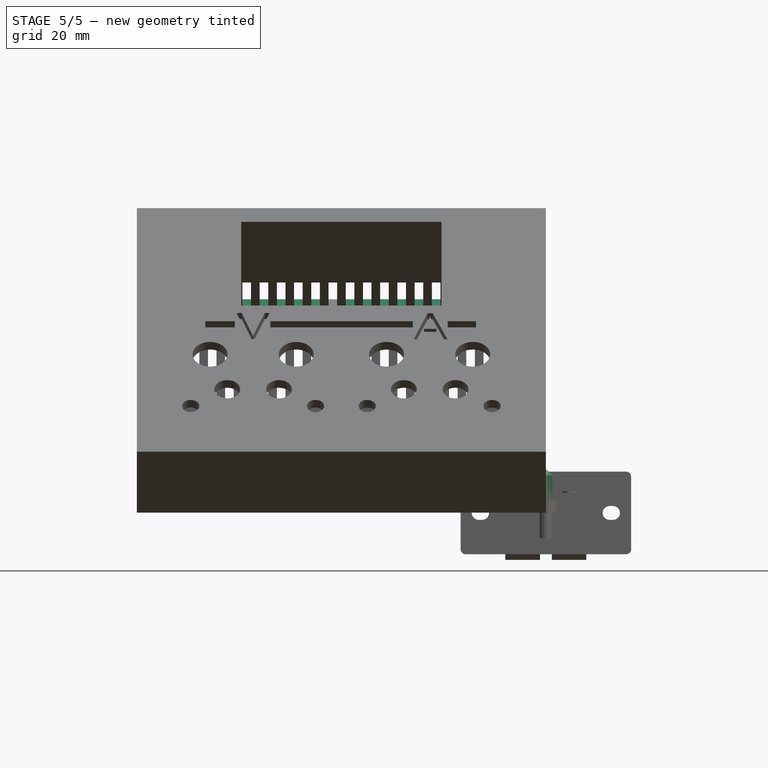
[diagram: stage 5 of 5 — front view after this stage's code; geometry added in this stage tinted green]
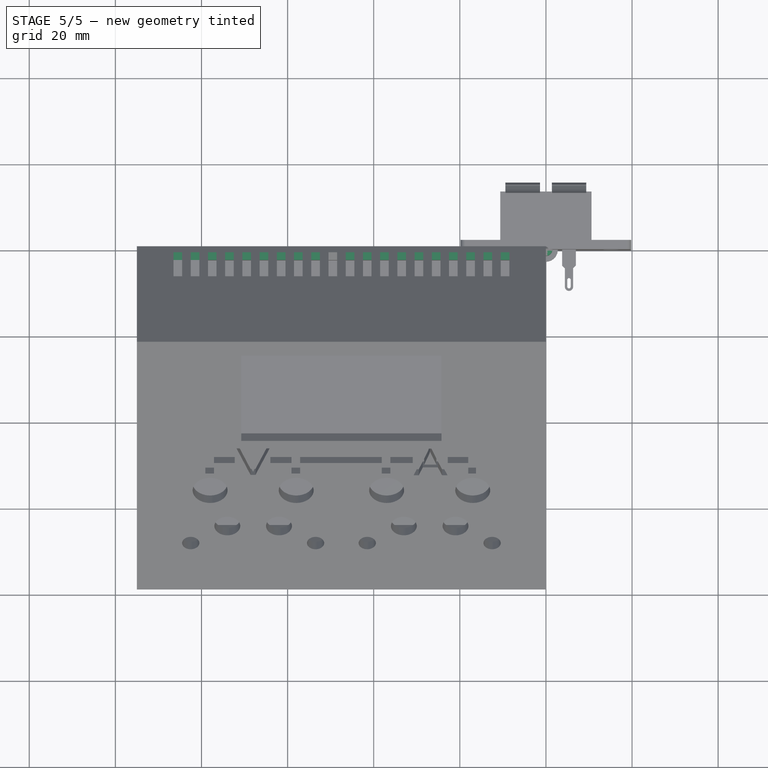
[diagram: stage 5 of 5 — top view after this stage's code; geometry added in this stage tinted green]
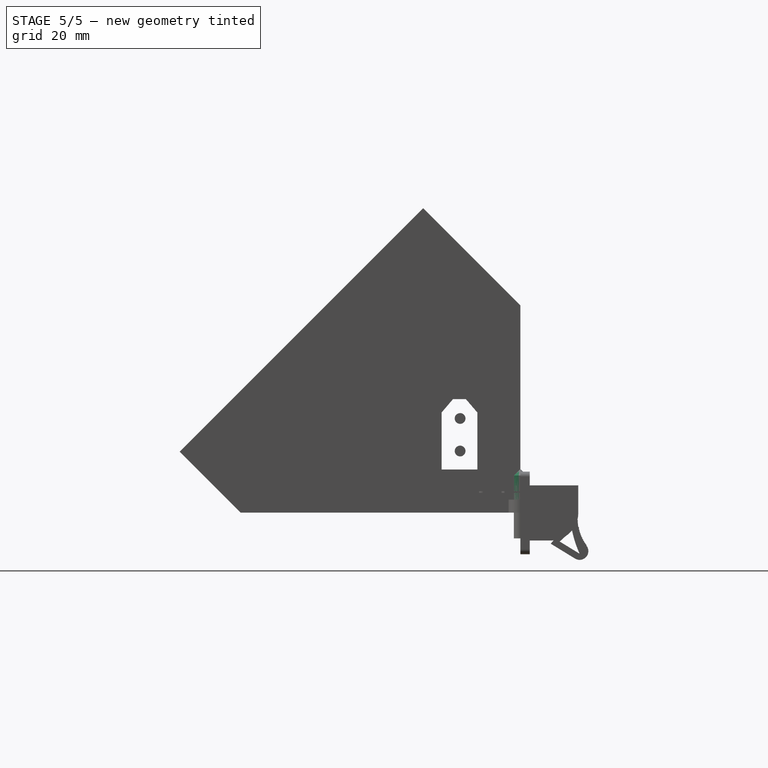
[diagram: stage 5 of 5 — right view after this stage's code; geometry added in this stage tinted green]
FEATURE [PartDesign::LinearPattern] LinearPattern002  label="ventilSupRepeat1"
  BaseFeature = -> Pocket009
  Direction = -> Sketch015 [H_Axis]
  Length = 36
  Occurrences = 10
  Originals = -> [Pocket009]
  Reversed = true
  expr: Occurrences = <<sp>>.ventilNbrFents
  expr: Length = <<sp>>.ventilLargeurRepet
FEATURE [PartDesign::LinearPattern] LinearPattern003  label="ventilSupRepeat2"
  BaseFeature = -> LinearPattern002
  Direction = -> Sketch015 [H_Axis]
  Length = 40
  Occurrences = 11
  Originals = -> [Pocket009]
  expr: Occurrences = <<sp>>.ventilNbrFents + 1
  expr: Length = <<sp>>.ventilLargeurRepet + <<sp>>.ventilEcartfente + <<sp>>.ventilLargeurFentes
FEATURE [Part::Feature] Solid002  label="RUTHEX_M3x5_7"
  Placement = pos=(-11,0,0) rot=(0,0,1;0rad)
  shape: bbox 4.583 x 5.705 x 4.583 mm, 200 faces (baked)
FEATURE [App::Part] Part003  label="ZSB_RUTHEX_M3_5.7_001"
  Group = -> [Solid002]
  Origin = -> Origin006
  Placement = pos=(-15.5,1.4e-15,16.6) rot=(0,0,1;3.14159rad)
FEATURE [Part::Feature] Solid003  label="RUTHEX_M3x5_008"
  Placement = pos=(-11,0,0) rot=(0,0,1;0rad)
  shape: bbox 4.583 x 5.705 x 4.583 mm, 200 faces (baked)
FEATURE [App::Part] Part004  label="ZSB_RUTHEX_M3_5.7_002"
  Group = -> [Solid003]
  Origin = -> Origin007
  Placement = pos=(-94,1.1e-14,16.6) rot=(0,0,1;3.14159rad)
FEATURE [Part::Feature] Solid004  label="RUTHEX_M3x5_009"
  Placement = pos=(-11,0,0) rot=(0,0,1;0rad)
  shape: bbox 4.583 x 5.705 x 4.583 mm, 200 faces (baked)
FEATURE [App::Part] Part005  label="ZSB_RUTHEX_M3_5.7_003"
  Group = -> [Solid004]
  Origin = -> Origin008
  Placement = pos=(-17.5,-63.4116,7.57386) rot=(0,0.382683,0.92388;3.14159rad)
FEATURE [Part::Feature] Solid005  label="RUTHEX_M3x5_010"
  Placement = pos=(-11,0,0) rot=(0,0,1;0rad)
  shape: bbox 4.583 x 5.705 x 4.583 mm, 200 faces (baked)
FEATURE [App::Part] Part006  label="ZSB_RUTHEX_M3_5.7_004"
  Group = -> [Solid005]
  Origin = -> Origin009
  Placement = pos=(-99.5,-63.4116,7.57386) rot=(0,0.382683,0.92388;3.14159rad)
FEATURE [Sketcher::SketchObject] Sketch025
  FullyConstrained = false
  MapMode = 5
  Support = -> [XY_Plane008]
  sketch-geometry (1):
    g0: Circle CenterX=0 CenterY=0 CenterZ=0 NormalX=0 NormalY=0 NormalZ=1 AngleXU=0 Radius=1.5
  constraints (2):
    c: Coincident(g0,g-1)
    c: Diameter(g0) = 3
FEATURE [Sketcher::SketchObject] Sketch026
  FullyConstrained = false
  MapMode = 5
  Support = -> [XY_Plane008]
  sketch-geometry (7):
    g0: LineSegment StartX=0.433013 StartY=-0.75 StartZ=0 EndX=0.866025 EndY=1.25568e-11 EndZ=0
    g1: LineSegment StartX=0.866025 StartY=1.25568e-11 StartZ=0 EndX=0.433013 EndY=0.75 EndZ=0
    g2: LineSegment StartX=0.433013 StartY=0.75 StartZ=0 EndX=-0.433013 EndY=0.75 EndZ=0
    g3: LineSegment StartX=-0.433013 StartY=0.75 StartZ=0 EndX=-0.866025 EndY=2.91366e-11 EndZ=0
    g4: LineSegment StartX=-0.866025 StartY=2.91366e-11 StartZ=0 EndX=-0.433013 EndY=-0.75 EndZ=0
    g5: LineSegment StartX=-0.433013 StartY=-0.75 StartZ=0 EndX=0.433013 EndY=-0.75 EndZ=0
    g6: Circle CenterX=0 CenterY=0 CenterZ=0 NormalX=0 NormalY=0 NormalZ=1 AngleXU=0 Radius=0.866025
  constraints (16):
    c: Coincident(g0,g1)
    c: Coincident(g1,g2)
    c: Coincident(g2,g3)
    c: Coincident(g3,g4)
    c: Coincident(g4,g5)
    c: Coincident(g5,g0)
    c: Equal(g0, g1-g5) x5
    c: PointOnObject(g0,g6)
    c: PointOnObject(g1,g6)
    c: PointOnObject(g2,g6)
    c: PointOnObject(g3,g6)
    c: PointOnObject(g4,g6)
    c: PointOnObject(g5,g6)
    c: Coincident(g6,g-1)
    c: Horizontal(g2)
    c: DistanceY(g0,g1) = 1.5
FEATURE [PartDesign::Pad] Pad012
  AllowMultiFace = false
  Direction = (1,1,1)
  Length = 10
  Length2 = 100
  Profile = -> Sketch025
  Type = 0
FEATURE [PartDesign::Chamfer] Chamfer
  Angle = 45
  Base = -> Pad012 [Edge3]
  BaseFeature = -> Pad012
  ChamferType = 0
  FlipDirection = false
  Size = 1.4
  Size2 = 1
  SupportTransform = false
FEATURE [PartDesign::Pocket] Pocket013
  AllowMultiFace = false
  BaseFeature = -> Chamfer
  Length = 1.5
  Length2 = 100
  Profile = -> Sketch026
  Reversed = true
  Type = 0
FEATURE [PartDesign::Chamfer] Chamfer001
  Angle = 45
  Base = -> Pocket013 [Edge3]
  BaseFeature = -> Pocket013
  ChamferType = 0
  FlipDirection = false
  Size = 0.1
  Size2 = 1
  SupportTransform = false
FEATURE [PartDesign::Body] Body005  label="bodyVisPointeauM3x10_001"
  Group = -> [Sketch025,Pad012,Chamfer,Sketch026,Pocket013,Chamfer001]
  Origin = -> Origin013
  Tip = -> Chamfer001
FEATURE [App::Part] Part007  label="partVisPointeauM3x10_001"
  Group = -> [Body005]
  Origin = -> Origin012
  Placement = pos=(-4.5,-0.5,16.6) rot=(1,0,0;1.5708rad)
FEATURE [Sketcher::SketchObject] Sketch027
  FullyConstrained = false
  MapMode = 5
  Support = -> [XY_Plane010]
  sketch-geometry (7):
    g0: LineSegment StartX=0.433013 StartY=-0.75 StartZ=0 EndX=0.866025 EndY=1.25568e-11 EndZ=0
    g1: LineSegment StartX=0.866025 StartY=1.25568e-11 StartZ=0 EndX=0.433013 EndY=0.75 EndZ=0
    g2: LineSegment StartX=0.433013 StartY=0.75 StartZ=0 EndX=-0.433013 EndY=0.75 EndZ=0
    g3: LineSegment StartX=-0.433013 StartY=0.75 StartZ=0 EndX=-0.866025 EndY=2.91366e-11 EndZ=0
    g4: LineSegment StartX=-0.866025 StartY=2.91366e-11 StartZ=0 EndX=-0.433013 EndY=-0.75 EndZ=0
    g5: LineSegment StartX=-0.433013 StartY=-0.75 StartZ=0 EndX=0.433013 EndY=-0.75 EndZ=0
    g6: Circle CenterX=0 CenterY=0 CenterZ=0 NormalX=0 NormalY=0 NormalZ=1 AngleXU=0 Radius=0.866025
  constraints (16):
    c: Coincident(g0,g1)
    c: Coincident(g1,g2)
    c: Coincident(g2,g3)
    c: Coincident(g3,g4)
    c: Coincident(g4,g5)
    c: Coincident(g5,g0)
    c: Equal(g0, g1-g5) x5
    c: PointOnObject(g0,g6)
    c: PointOnObject(g1,g6)
    c: PointOnObject(g2,g6)
    c: PointOnObject(g3,g6)
    c: PointOnObject(g4,g6)
    c: PointOnObject(g5,g6)
    c: Coincident(g6,g-1)
    c: Horizontal(g2)
    c: DistanceY(g0,g1) = 1.5
FEATURE [Sketcher::SketchObject] Sketch028
  FullyConstrained = false
  MapMode = 5
  Support = -> [XY_Plane010]
  sketch-geometry (1):
    g0: Circle CenterX=0 CenterY=0 CenterZ=0 NormalX=0 NormalY=0 NormalZ=1 AngleXU=0 Radius=1.5
  constraints (2):
    c: Coincident(g0,g-1)
    c: Diameter(g0) = 3
FEATURE [PartDesign::Pad] Pad013
  AllowMultiFace = false
  Direction = (1,1,1)
  Length = 10
  Length2 = 100
  Profile = -> Sketch028
  Type = 0
FEATURE [PartDesign::Chamfer] Chamfer003
  Angle = 45
  Base = -> Pad013 [Edge3]
  BaseFeature = -> Pad013
  ChamferType = 0
  FlipDirection = false
  Size = 1.4
  Size2 = 1
  SupportTransform = false
FEATURE [PartDesign::Pocket] Pocket014
  AllowMultiFace = false
  BaseFeature = -> Chamfer003
  Length = 1.5
  Length2 = 100
  Profile = -> Sketch027
  Reversed = true
  Type = 0
FEATURE [PartDesign::Chamfer] Chamfer002
  Angle = 45
  Base = -> Pocket014 [Edge3]
  BaseFeature = -> Pocket014
  ChamferType = 0
  FlipDirection = false
  Size = 0.1
  Size2 = 1
  SupportTransform = false
FEATURE [PartDesign::Body] Body006  label="bodyVisPointeauM3x10_002"
  Group = -> [Sketch028,Pad013,Chamfer003,Sketch027,Pocket014,Chamfer002]
  Origin = -> Origin015
  Tip = -> Chamfer002
FEATURE [App::Part] Part008  label="partVisPointeauM3x10_002"
  Group = -> [Body006]
  Origin = -> Origin014
  Placement = pos=(-83,-0.5,16.6) rot=(1,0,0;1.5708rad)
FEATURE [PartDesign::Plane] DatumPlane010
  AttachmentOffset = pos=(0,0,-2.5) rot=(0,0,1;0rad)
  Length = 110.737
  MapMode = 5
  Placement = pos=(-2.5,6e-16,-6e-16) rot=(0.57735,0.57735,0.57735;2.0944rad)
  ResizeMode = 0
  Support = -> [YZ_Plane002]
  Width = 102.305
  expr: .AttachmentOffset.Base.z = -<<sp>>.epaisseurParois
FEATURE [Sketcher::SketchObject] Sketch029  label="sk_bourletMaintient"
  FullyConstrained = true
  MapMode = 5
  Placement = pos=(-2.5,6e-16,-6e-16) rot=(0.57735,0.57735,0.57735;2.0944rad)
  Support = -> [DatumPlane010]
  expr: Constraints[19] = <<sp>>.bourletMaintientRayon
  expr: Constraints[20] = <<sp>>.bourletDistAuBord
  expr: Constraints[15] = <<sp>>.epaisseurParois
  expr: Constraints[11] = <<sp>>.Face
  expr: Constraints[10] = <<sp>>.angleFaceRetourHaut
  expr: Constraints[9] = <<sp>>.angleFacePetitRetour
  expr: Constraints[8] = <<sp>>.anglePetitRetourBase
  expr: Constraints[7] = <<sp>>.petitRetour
  expr: Constraints[6] = <<sp>>.Base
  sketch-geometry (7):
    g0: ArcOfCircle CenterX=-11.3137 CenterY=55.9153 CenterZ=0 NormalX=0 NormalY=0 NormalZ=1 AngleXU=0 Radius=1.5 StartAngle=5.49779 EndAngle=8.63938
    g1: LineSegment StartX=0 StartY=0 StartZ=0 EndX=-65 EndY=0 EndZ=0
    g2: LineSegment StartX=-65 StartY=0 StartZ=0 EndX=-79.1421 EndY=14.1421 EndZ=0
    g3: LineSegment StartX=-79.1421 StartY=14.1421 StartZ=0 EndX=-22.5736 EndY=70.7107 EndZ=0
    g4: LineSegment StartX=-22.5736 StartY=70.7107 StartZ=0 EndX=0 EndY=48.1371 EndZ=0
    g5: LineSegment StartX=-24.3414 StartY=68.9429 StartZ=0 EndX=0 EndY=44.6016 EndZ=0
    g6: LineSegment StartX=-12.3744 StartY=56.9759 StartZ=0 EndX=-10.253 EndY=54.8546 EndZ=0
  constraints (23):
    c: Coincident(g-1,g1)
    c: Horizontal(g1)
    c: Coincident(g1,g2)
    c: Coincident(g2,g3)
    c: Coincident(g3,g4)
    c: PointOnObject(g4,g-2)
    c: DistanceX(g1,g1) = 65
    c: Distance(g2,g1) = 20
    c: Angle(g1,g2) = 2.35619
    c: Angle(g2,g3) = 1.5708
    c: Angle(g3,g4) = 1.5708
    c: Distance(g3) = 80
    c: PointOnObject(g5,g3)
    c: PointOnObject(g5,g-2)
    c: Parallel(g5,g4)
    c: Distance(g5,g3) = 2.5
    c: PointOnObject(g0,g5)
    c: PointOnObject(g0,g5)
    c: PointOnObject(g0,g5)
    c: Radius(g0) = 1.5
    c: Distance(g0,g5) = 16
    c: Coincident(g6,g0)
    c: Coincident(g6,g0)
FEATURE [PartDesign::Pocket] Pocket015  label="bourletMaintien"
  AllowMultiFace = false
  BaseFeature = -> LinearPattern003
  Length = 90
  Length2 = 100
  Profile = -> Sketch029
  Type = 0
  expr: Length = <<sp>>.largeurModuleBase - 2 * <<sp>>.epaisseurParois
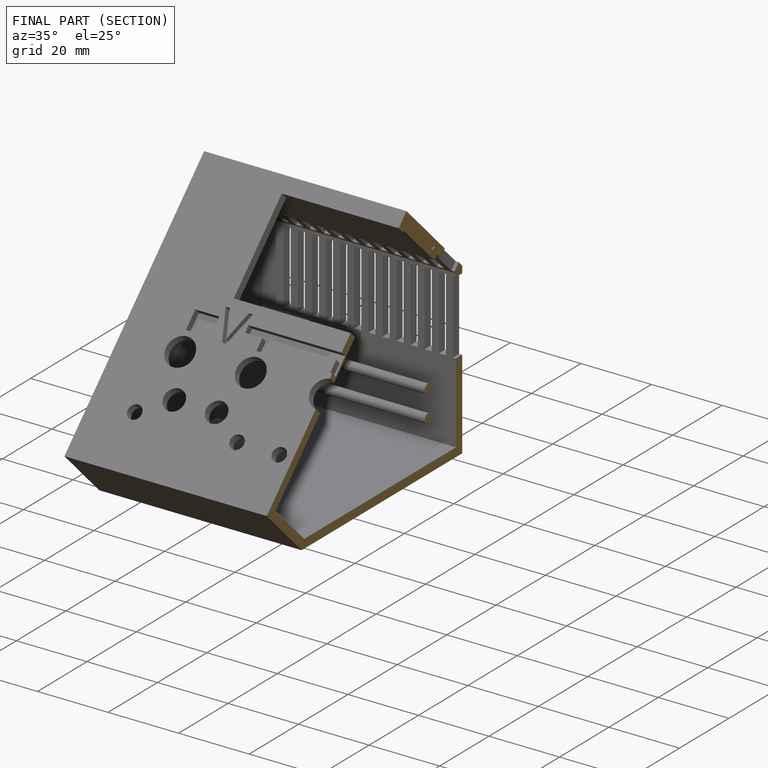
[diagram: finished part — half-section view (interior)]
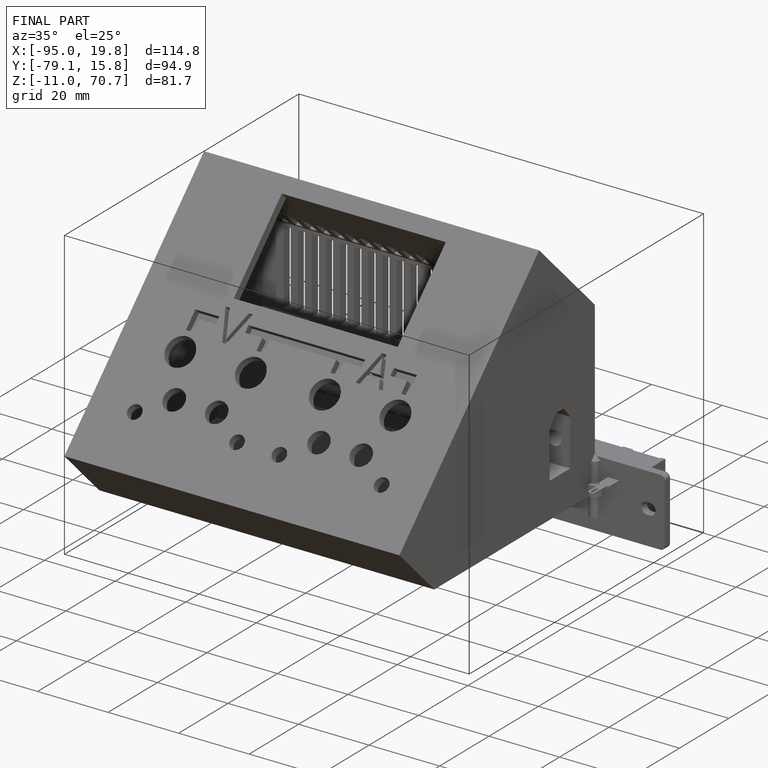
[diagram: finished part — iso view with bounding-box wireframe]
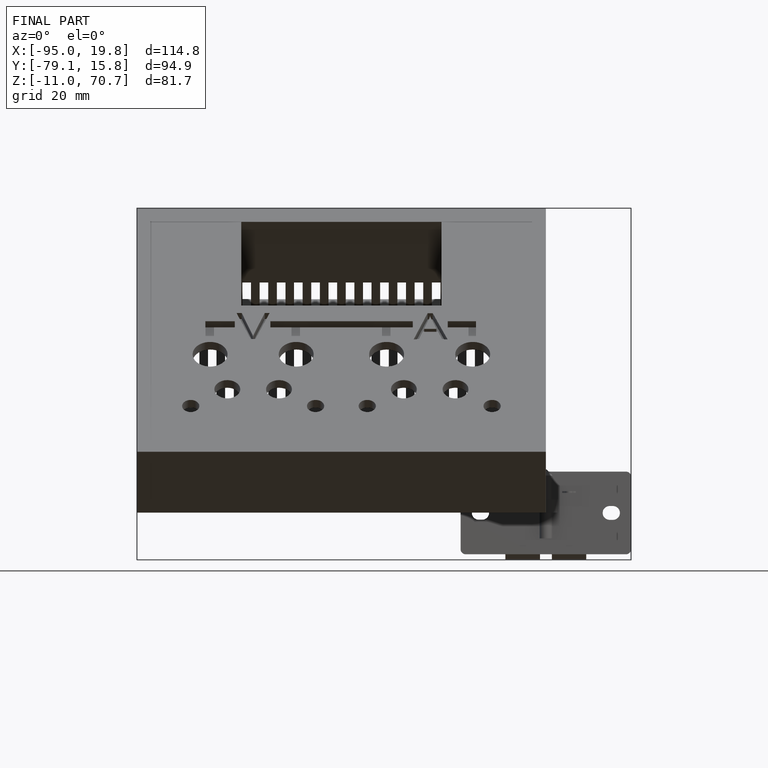
[diagram: finished part — front view with bounding-box wireframe]
